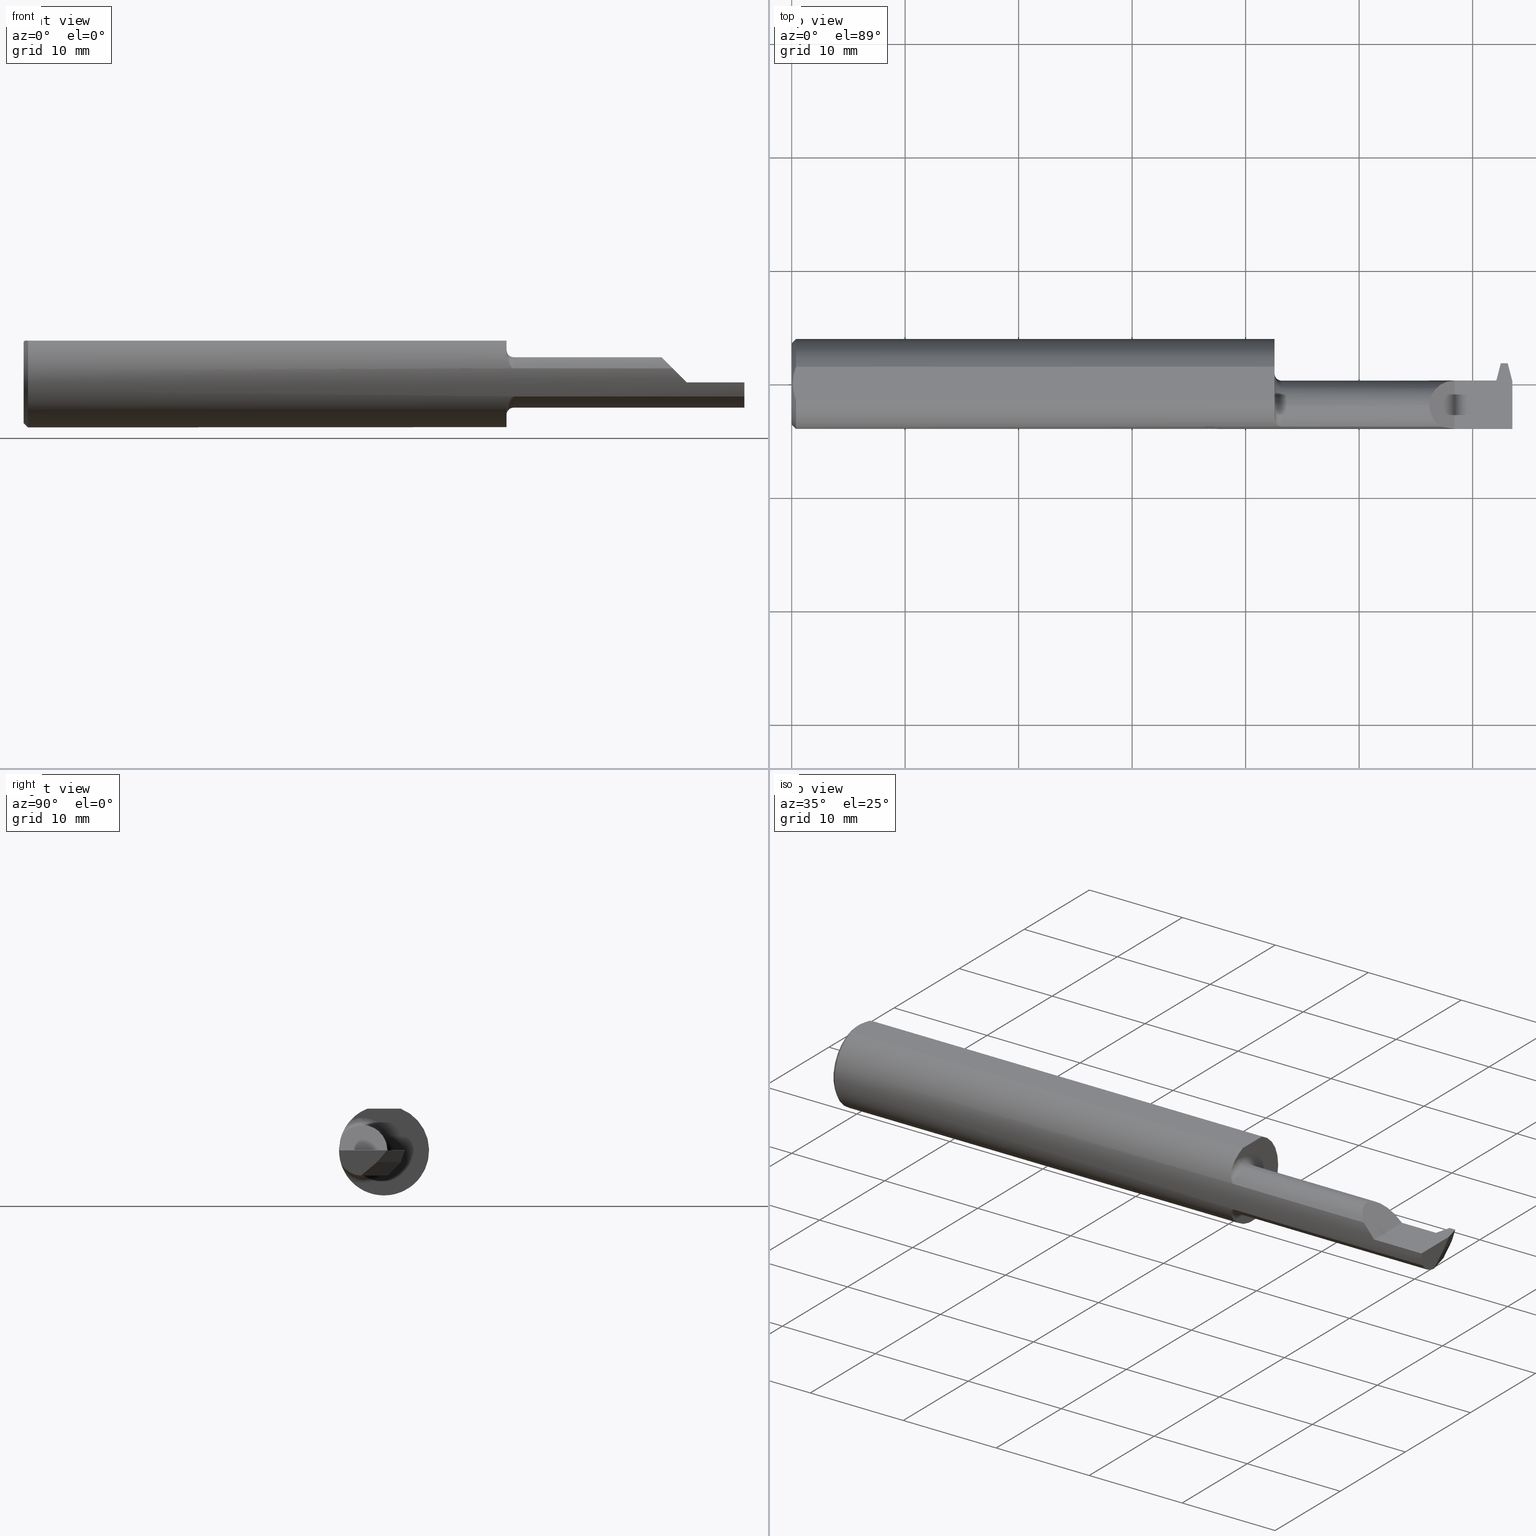
[diagram: canonical four-view strip — front | top / right | iso, engineering-drawing reading convention]
A machine part, canonical four-view strip (front | top / right | iso — engineering-drawing reading convention). The complete STEP part file that produces these views, byte-faithful:
ISO-10303-21;
HEADER;
FILE_DESCRIPTION (( 'STEP AP203' ),
    '1' );
FILE_NAME ('230949-FAT230750-14.STEP',
    '2024-05-01T18:10:50',
    ( '' ),
    ( '' ),
    'SwSTEP 2.0',
    'SolidWorks 2022',
    '' );
FILE_SCHEMA (( 'CONFIG_CONTROL_DESIGN' ));
ENDSEC;

DATA;
#1 = DIRECTION ( 'NONE',  ( 0.000000000000000000, 0.000000000000000000, -1.000000000000000000 ) ) ;
#2 = VECTOR ( 'NONE', #785, 39.37007874015748854 ) ;
#3 = APPLICATION_PROTOCOL_DEFINITION ( 'international standard', 'config_control_design', 1994, #637 ) ;
#4 = PLANE ( 'NONE',  #61 ) ;
#5 = ORIENTED_EDGE ( 'NONE', *, *, #807, .T. ) ;
#6 = AXIS2_PLACEMENT_3D ( 'NONE', #224, #498, #1 ) ;
#7 = CARTESIAN_POINT ( 'NONE',  ( 1.675000000000000044, 0.01190000000000001473, -4.286122238378320280E-17 ) ) ;
#8 = DIMENSIONAL_EXPONENTS ( 1.000000000000000000, 0.000000000000000000, 0.000000000000000000, 0.000000000000000000, 0.000000000000000000, 0.000000000000000000, 0.000000000000000000 ) ;
#9 = DIRECTION ( 'NONE',  ( -1.000000000000000000, -0.000000000000000000, -0.000000000000000000 ) ) ;
#10 = ADVANCED_FACE ( 'NONE', ( #357 ), #853, .F. ) ;
#11 = ORIENTED_EDGE ( 'NONE', *, *, #45, .F. ) ;
#12 = CARTESIAN_POINT ( 'NONE',  ( 2.499598828602855427, -0.07853027803292619846, -0.08746319671885703639 ) ) ;
#13 = DIRECTION ( 'NONE',  ( 2.088695645913289163E-16, -0.9786527043120508695, 0.2055210070593990190 ) ) ;
#14 = CARTESIAN_POINT ( 'NONE',  ( 2.460971373209815294, -0.07560000000000001441, -0.08750000000000002220 ) ) ;
#15 = ORIENTED_EDGE ( 'NONE', *, *, #632, .T. ) ;
#16 = EDGE_CURVE ( 'NONE', #847, #562, #890, .T. ) ;
#17 = DIRECTION ( 'NONE',  ( 0.000000000000000000, 0.000000000000000000, 1.000000000000000000 ) ) ;
#18 = DIRECTION ( 'NONE',  ( 0.000000000000000000, -0.2055210070593990190, -0.9786527043120508695 ) ) ;
#19 = CARTESIAN_POINT ( 'NONE',  ( 2.431928916614725544, 0.01190000000000001647, -0.01216180653188870912 ) ) ;
#20 = ORIENTED_EDGE ( 'NONE', *, *, #519, .F. ) ;
#21 = ADVANCED_FACE ( 'NONE', ( #409 ), #850, .T. ) ;
#22 = DIRECTION ( 'NONE',  ( 1.000000000000000000, 0.000000000000000000, 0.000000000000000000 ) ) ;
#23 = CARTESIAN_POINT ( 'NONE',  ( 1.693177178722074183, -0.1472468593966860251, -0.05183574833930117143 ) ) ;
#24 = EDGE_LOOP ( 'NONE', ( #60, #932, #119, #146, #600, #750 ) ) ;
#25 = TOROIDAL_SURFACE ( 'NONE', #149, 0.1125000000000000305, 0.02500000000000000139 ) ;
#26 = VECTOR ( 'NONE', #491, 39.37007874015748854 ) ;
#27 = CARTESIAN_POINT ( 'NONE',  ( 1.690079856500521727, -0.1460410296156850751, 0.05517908519247215204 ) ) ;
#28 = APPROVAL_ROLE ( '' ) ;
#29 = CARTESIAN_POINT ( 'NONE',  ( 1.675000000000000044, -0.07560000000000001441, 0.000000000000000000 ) ) ;
#30 = ORIENTED_EDGE ( 'NONE', *, *, #840, .F. ) ;
#31 = CARTESIAN_POINT ( 'NONE',  ( 2.480769755525371156, 0.09612417501633442607, -0.002002720452078558550 ) ) ;
#32 = APPROVAL_STATUS ( 'not_yet_approved' ) ;
#33 = LINE ( 'NONE', #828, #518 ) ;
#34 = ORIENTED_EDGE ( 'NONE', *, *, #41, .T. ) ;
#35 = VECTOR ( 'NONE', #300, 39.37007874015748143 ) ;
#36 = CARTESIAN_POINT ( 'NONE',  ( 1.675000000000000044, -0.07560000000000001441, -0.1125000000000000305 ) ) ;
#37 = SECURITY_CLASSIFICATION ( '', '', #189 ) ;
#38 = CALENDAR_DATE ( 2024, 1, 5 ) ;
#39 = FACE_OUTER_BOUND ( 'NONE', #674, .T. ) ;
#40 = ORIENTED_EDGE ( 'NONE', *, *, #284, .T. ) ;
#41 = EDGE_CURVE ( 'NONE', #474, #329, #408, .T. ) ;
#42 = CARTESIAN_POINT ( 'NONE',  ( 2.300000000000000266, 0.2000000000000000111, -4.286122238378320280E-17 ) ) ;
#43 = CARTESIAN_POINT ( 'NONE',  ( 0.000000000000000000, 0.000000000000000000, 0.000000000000000000 ) ) ;
#44 = ORIENTED_EDGE ( 'NONE', *, *, #47, .F. ) ;
#45 = EDGE_CURVE ( 'NONE', #175, #474, #919, .T. ) ;
#46 = APPROVAL ( #386, 'UNSPECIFIED' ) ;
#47 = EDGE_CURVE ( 'NONE', #345, #243, #584, .T. ) ;
#48 = CARTESIAN_POINT ( 'NONE',  ( 0.003999999999996986001, -0.009882491626910055310, 0.1450999999999999790 ) ) ;
#49 = LINE ( 'NONE', #198, #484 ) ;
#50 = ORIENTED_EDGE ( 'NONE', *, *, #68, .T. ) ;
#51 = VECTOR ( 'NONE', #921, 39.37007874015748143 ) ;
#52 = FACE_OUTER_BOUND ( 'NONE', #421, .T. ) ;
#53 = DIRECTION ( 'NONE',  ( 1.000000000000000000, 0.000000000000000000, 0.000000000000000000 ) ) ;
#54 = ORIENTED_EDGE ( 'NONE', *, *, #639, .T. ) ;
#55 = VECTOR ( 'NONE', #108, 39.37007874015748143 ) ;
#56 = LINE ( 'NONE', #213, #130 ) ;
#57 = DIRECTION ( 'NONE',  ( 0.000000000000000000, 0.000000000000000000, -1.000000000000000000 ) ) ;
#58 = ORIENTED_EDGE ( 'NONE', *, *, #550, .F. ) ;
#59 = CARTESIAN_POINT ( 'NONE',  ( 2.500000000000000000, -0.02351705752185811668, -0.03999999999999849509 ) ) ;
#60 = ORIENTED_EDGE ( 'NONE', *, *, #598, .F. ) ;
#61 = AXIS2_PLACEMENT_3D ( 'NONE', #660, #515, #160 ) ;
#62 = AXIS2_PLACEMENT_3D ( 'NONE', #705, #626, #556 ) ;
#63 = LINE ( 'NONE', #565, #73 ) ;
#64 = CC_DESIGN_APPROVAL ( #317, ( #37 ) ) ;
#65 = PLANE ( 'NONE',  #606 ) ;
#66 = AXIS2_PLACEMENT_3D ( 'NONE', #454, #756, #607 ) ;
#67 = ORIENTED_EDGE ( 'NONE', *, *, #765, .T. ) ;
#68 = EDGE_CURVE ( 'NONE', #645, #859, #420, .T. ) ;
#69 =( BOUNDED_CURVE ( )  B_SPLINE_CURVE ( 3, ( #158, #87, #12, #306 ),
 .UNSPECIFIED., .F., .F. ) 
 B_SPLINE_CURVE_WITH_KNOTS ( ( 4, 4 ),
 ( 0.6981317007977303479, 0.7483676794121272291 ),
 .UNSPECIFIED. ) 
 CURVE ( )  GEOMETRIC_REPRESENTATION_ITEM ( )  RATIONAL_B_SPLINE_CURVE ( ( 1.000000000000000000, 0.9997897065944802986, 0.9997897065944802986, 1.000000000000000000 ) ) 
 REPRESENTATION_ITEM ( '' )  );
#70 = DIRECTION ( 'NONE',  ( 1.000000000000000000, 0.000000000000000000, 0.000000000000000000 ) ) ;
#71 = AXIS2_PLACEMENT_3D ( 'NONE', #803, #648, #165 ) ;
#72 = DIRECTION ( 'NONE',  ( 0.2503800040544356675, -0.9681476403781091866, 0.000000000000000000 ) ) ;
#73 = VECTOR ( 'NONE', #766, 39.37007874015748854 ) ;
#74 = DIRECTION ( 'NONE',  ( -1.000000000000000000, -0.000000000000000000, -0.000000000000000000 ) ) ;
#75 = ORIENTED_EDGE ( 'NONE', *, *, #632, .F. ) ;
#76 = EDGE_CURVE ( 'NONE', #798, #859, #845, .T. ) ;
#77 = CARTESIAN_POINT ( 'NONE',  ( 2.251340690561190794, -0.1483222222222220776, 0.04865930943880889675 ) ) ;
#78 = DIRECTION ( 'NONE',  ( 1.000000000000000000, 0.000000000000000000, 0.000000000000000000 ) ) ;
#79 = EDGE_LOOP ( 'NONE', ( #367, #583, #567, #350, #453 ) ) ;
#80 = ADVANCED_FACE ( 'NONE', ( #624 ), #65, .T. ) ;
#81 = CARTESIAN_POINT ( 'NONE',  ( 2.058749999999999858, -0.1483222222222221054, 0.04865930943880881349 ) ) ;
#82 = AXIS2_PLACEMENT_3D ( 'NONE', #917, #53, #344 ) ;
#83 = LINE ( 'NONE', #230, #470 ) ;
#84 = DIRECTION ( 'NONE',  ( 0.000000000000000000, 0.000000000000000000, -1.000000000000000000 ) ) ;
#85 = ORIENTED_EDGE ( 'NONE', *, *, #140, .F. ) ;
#86 =( GEOMETRIC_REPRESENTATION_CONTEXT ( 3 ) GLOBAL_UNCERTAINTY_ASSIGNED_CONTEXT ( ( #691 ) ) GLOBAL_UNIT_ASSIGNED_CONTEXT ( ( #802, #312, #290 ) ) REPRESENTATION_CONTEXT ( 'NONE', 'WORKASPACE' ) );
#87 = CARTESIAN_POINT ( 'NONE',  ( 2.499208634579223709, -0.07706537013472009034, -0.08750000000000002220 ) ) ;
#88 = PLANE ( 'NONE',  #486 ) ;
#89 = CARTESIAN_POINT ( 'NONE',  ( 2.212499999999999911, -0.07560000000000001441, 0.08750000000000002220 ) ) ;
#90 = EDGE_CURVE ( 'NONE', #537, #859, #202, .T. ) ;
#91 = AXIS2_PLACEMENT_3D ( 'NONE', #494, #912, #835 ) ;
#92 = ORIENTED_EDGE ( 'NONE', *, *, #848, .F. ) ;
#93 = CARTESIAN_POINT ( 'NONE',  ( 1.675000000000000044, 0.2119000000000000050, 0.000000000000000000 ) ) ;
#94 = CARTESIAN_POINT ( 'NONE',  ( 2.483431041314417609, 0.07410000000000004083, 0.000000000000000000 ) ) ;
#95 = LINE ( 'NONE', #857, #341 ) ;
#96 = VERTEX_POINT ( 'NONE', #483 ) ;
#97 = DIRECTION ( 'NONE',  ( 0.7071067811865483499, 0.000000000000000000, -0.7071067811865466846 ) ) ;
#98 = DIRECTION ( 'NONE',  ( 0.000000000000000000, 0.000000000000000000, -1.000000000000000000 ) ) ;
#99 = ORIENTED_EDGE ( 'NONE', *, *, #120, .T. ) ;
#100 = AXIS2_PLACEMENT_3D ( 'NONE', #635, #774, #924 ) ;
#101 = DIRECTION ( 'NONE',  ( -0.000000000000000000, 1.000000000000000000, -0.000000000000000000 ) ) ;
#102 = DATE_AND_TIME ( #38, #162 ) ;
#103 = DIRECTION ( 'NONE',  ( 1.000000000000000000, 0.000000000000000000, 0.000000000000000000 ) ) ;
#104 =( BOUNDED_CURVE ( )  B_SPLINE_CURVE ( 3, ( #721, #368, #876, #651 ),
 .UNSPECIFIED., .F., .F. ) 
 B_SPLINE_CURVE_WITH_KNOTS ( ( 4, 4 ),
 ( 0.000000000000000000, 0.9811027303930319743 ),
 .UNSPECIFIED. ) 
 CURVE ( )  GEOMETRIC_REPRESENTATION_ITEM ( )  RATIONAL_B_SPLINE_CURVE ( ( 1.000000000000000000, 0.9213821585145209880, 0.9213821585145209880, 1.000000000000000000 ) ) 
 REPRESENTATION_ITEM ( '' )  );
#105 = VERTEX_POINT ( 'NONE', #770 ) ;
#106 = CARTESIAN_POINT ( 'NONE',  ( 1.677226674330530409, -0.1304125201963227398, 0.08600364038630173291 ) ) ;
#107 = PERSON_AND_ORGANIZATION_ROLE ( 'classification_officer' ) ;
#108 = DIRECTION ( 'NONE',  ( 1.000000000000000000, 2.134256245050228381E-16, -0.000000000000000000 ) ) ;
#109 = ORIENTED_EDGE ( 'NONE', *, *, #814, .F. ) ;
#110 = CARTESIAN_POINT ( 'NONE',  ( 2.450987044514465474, 0.001198827012965008373, -0.04193077830702267306 ) ) ;
#111 = EDGE_CURVE ( 'NONE', #658, #625, #280, .T. ) ;
#112 = SHAPE_DEFINITION_REPRESENTATION ( #928, #663 ) ;
#113 = LINE ( 'NONE', #393, #55 ) ;
#114 = EDGE_LOOP ( 'NONE', ( #137, #834, #50, #854 ) ) ;
#115 = CARTESIAN_POINT ( 'NONE',  ( 2.461097633250371786, -0.1996921588353207655, -0.06225088703809245755 ) ) ;
#116 = APPROVAL_PERSON_ORGANIZATION ( #466, #317, #28 ) ;
#117 = COORDINATED_UNIVERSAL_TIME_OFFSET ( 8, 0, .BEHIND. ) ;
#118 = CARTESIAN_POINT ( 'NONE',  ( 2.300000000000000266, 0.2000000000000000111, -4.286122238378320280E-17 ) ) ;
#119 = ORIENTED_EDGE ( 'NONE', *, *, #683, .T. ) ;
#120 = EDGE_CURVE ( 'NONE', #232, #212, #557, .T. ) ;
#121 = EDGE_CURVE ( 'NONE', #175, #658, #489, .T. ) ;
#122 = VERTEX_POINT ( 'NONE', #926 ) ;
#123 = CARTESIAN_POINT ( 'NONE',  ( 1.699999999999999956, -0.1483222222222221054, -0.04865930943880881349 ) ) ;
#124 = FACE_OUTER_BOUND ( 'NONE', #616, .T. ) ;
#125 = EDGE_LOOP ( 'NONE', ( #786, #187, #418, #292 ) ) ;
#126 = DESIGN_CONTEXT ( 'detailed design', #929, 'design' ) ;
#127 = FACE_OUTER_BOUND ( 'NONE', #114, .T. ) ;
#128 = ORIENTED_EDGE ( 'NONE', *, *, #546, .T. ) ;
#129 = ORIENTED_EDGE ( 'NONE', *, *, #47, .T. ) ;
#130 = VECTOR ( 'NONE', #347, 39.37007874015748143 ) ;
#131 = VECTOR ( 'NONE', #97, 39.37007874015748143 ) ;
#132 = FACE_OUTER_BOUND ( 'NONE', #628, .T. ) ;
#133 = CARTESIAN_POINT ( 'NONE',  ( 2.500000000000000000, -0.07560000000000001441, 0.000000000000000000 ) ) ;
#134 = ORIENTED_EDGE ( 'NONE', *, *, #800, .T. ) ;
#135 = DIRECTION ( 'NONE',  ( -2.349945532544890791E-15, -0.9455185755993167351, 0.3255681544571569774 ) ) ;
#136 = CARTESIAN_POINT ( 'NONE',  ( 2.500000000000000000, 0.2000000000000000111, -4.286122238378320280E-17 ) ) ;
#137 = ORIENTED_EDGE ( 'NONE', *, *, #380, .T. ) ;
#138 = LINE ( 'NONE', #270, #301 ) ;
#139 = DIRECTION ( 'NONE',  ( 0.000000000000000000, 0.000000000000000000, 1.000000000000000000 ) ) ;
#140 = EDGE_CURVE ( 'NONE', #243, #847, #286, .T. ) ;
#141 = ORIENTED_EDGE ( 'NONE', *, *, #374, .F. ) ;
#142 = DIRECTION ( 'NONE',  ( 0.2503800040544416072, 0.9681476403781076323, 0.000000000000000000 ) ) ;
#143 = DIRECTION ( 'NONE',  ( 1.000000000000000000, 0.000000000000000000, 0.000000000000000000 ) ) ;
#144 = DIRECTION ( 'NONE',  ( -1.000000000000000000, -0.000000000000000000, -0.000000000000000000 ) ) ;
#145 = APPROVAL_PERSON_ORGANIZATION ( #602, #670, #526 ) ;
#146 = ORIENTED_EDGE ( 'NONE', *, *, #41, .F. ) ;
#147 = EDGE_CURVE ( 'NONE', #474, #829, #426, .T. ) ;
#148 = DIRECTION ( 'NONE',  ( 0.000000000000000000, 0.000000000000000000, -1.000000000000000000 ) ) ;
#149 = AXIS2_PLACEMENT_3D ( 'NONE', #503, #499, #98 ) ;
#150 = FACE_OUTER_BOUND ( 'NONE', #903, .T. ) ;
#151 = CARTESIAN_POINT ( 'NONE',  ( 0.01499999999999970281, 0.000000000000000000, 0.000000000000000000 ) ) ;
#152 = ADVANCED_FACE ( 'NONE', ( #361 ), #4, .T. ) ;
#153 = ORIENTED_EDGE ( 'NONE', *, *, #641, .T. ) ;
#154 = PRODUCT ( '230949-FAT230750-14', '230949-FAT230750-14', '', ( #597 ) ) ;
#155 = DIRECTION ( 'NONE',  ( -0.9474803064293675359, -0.2450350680735357556, 0.2055210070593990468 ) ) ;
#156 = FACE_OUTER_BOUND ( 'NONE', #772, .T. ) ;
#157 = ORIENTED_EDGE ( 'NONE', *, *, #374, .T. ) ;
#158 = CARTESIAN_POINT ( 'NONE',  ( 2.498829664094795788, -0.07560000000000004217, -0.08750000000000006384 ) ) ;
#159 = CARTESIAN_POINT ( 'NONE',  ( 2.450987044514465474, -0.04764222079116738756, -0.08291328350578192063 ) ) ;
#160 = DIRECTION ( 'NONE',  ( -0.2945363905204724242, 0.000000000000000000, 0.9556402642517589641 ) ) ;
#161 = ORIENTED_EDGE ( 'NONE', *, *, #16, .F. ) ;
#162 = LOCAL_TIME ( 11, 10, 50.00000000000000000, #743 ) ;
#163 = CARTESIAN_POINT ( 'NONE',  ( 1.699999999999999956, -0.07559999999999998666, 0.1125000000000000305 ) ) ;
#164 = PLANE ( 'NONE',  #278 ) ;
#165 = DIRECTION ( 'NONE',  ( 0.000000000000000000, 0.000000000000000000, -1.000000000000000000 ) ) ;
#166 = TOROIDAL_SURFACE ( 'NONE', #71, 0.1125000000000000305, 0.02500000000000000139 ) ;
#167 = VERTEX_POINT ( 'NONE', #644 ) ;
#168 = DIRECTION ( 'NONE',  ( -0.03268736195502882497, 0.9994656254061071721, -0.000000000000000000 ) ) ;
#169 = FACE_OUTER_BOUND ( 'NONE', #841, .T. ) ;
#170 = EDGE_LOOP ( 'NONE', ( #886, #11, #391, #40, #309, #5, #75, #54, #815, #153, #464, #109, #192 ) ) ;
#171 = EDGE_CURVE ( 'NONE', #668, #749, #589, .T. ) ;
#172 = FACE_OUTER_BOUND ( 'NONE', #661, .T. ) ;
#173 = PERSON_AND_ORGANIZATION ( #844, #758 ) ;
#174 = CARTESIAN_POINT ( 'NONE',  ( 2.251340690561190794, -0.1483222222222220776, 0.04865930943880889675 ) ) ;
#175 = VERTEX_POINT ( 'NONE', #241 ) ;
#176 = LOCAL_TIME ( 11, 10, 50.00000000000000000, #327 ) ;
#177 = PRODUCT_RELATED_PRODUCT_CATEGORY ( 'detail', '', ( #154 ) ) ;
#178 = VECTOR ( 'NONE', #642, 39.37007874015748854 ) ;
#179 = CARTESIAN_POINT ( 'NONE',  ( 1.675000000000000044, -0.1194473140465537458, 0.1006887116398776927 ) ) ;
#180 = PERSON_AND_ORGANIZATION ( #844, #758 ) ;
#181 = CYLINDRICAL_SURFACE ( 'NONE', #789, 0.08750000000000002220 ) ;
#182 = ORIENTED_EDGE ( 'NONE', *, *, #868, .T. ) ;
#183 = ORIENTED_EDGE ( 'NONE', *, *, #406, .F. ) ;
#184 = ADVANCED_FACE ( 'NONE', ( #794 ), #422, .T. ) ;
#185 = DIRECTION ( 'NONE',  ( 0.000000000000000000, 0.000000000000000000, -1.000000000000000000 ) ) ;
#186 = CARTESIAN_POINT ( 'NONE',  ( 1.684139466932422780, -0.1419217972574611242, -0.06523403485447477890 ) ) ;
#187 = ORIENTED_EDGE ( 'NONE', *, *, #446, .F. ) ;
#188 = DIRECTION ( 'NONE',  ( 0.000000000000000000, 0.000000000000000000, -1.000000000000000000 ) ) ;
#189 = SECURITY_CLASSIFICATION_LEVEL ( 'unclassified' ) ;
#190 = ADVANCED_FACE ( 'NONE', ( #442 ), #866, .T. ) ;
#191 = LINE ( 'NONE', #677, #910 ) ;
#192 = ORIENTED_EDGE ( 'NONE', *, *, #379, .T. ) ;
#193 = DIRECTION ( 'NONE',  ( -1.000000000000000000, -0.000000000000000000, -0.000000000000000000 ) ) ;
#194 = EDGE_CURVE ( 'NONE', #321, #694, #95, .T. ) ;
#195 = CARTESIAN_POINT ( 'NONE',  ( 1.675465807751463032, -0.1232996061929553383, -0.09592304639536579358 ) ) ;
#196 = ORIENTED_EDGE ( 'NONE', *, *, #288, .T. ) ;
#197 = VERTEX_POINT ( 'NONE', #14 ) ;
#198 = CARTESIAN_POINT ( 'NONE',  ( 1.675000000000000044, 0.1000000000000000056, 0.1450999999999999790 ) ) ;
#199 = CARTESIAN_POINT ( 'NONE',  ( 2.212499999999999911, -0.02434368670764566409, 0.08750000000000006384 ) ) ;
#200 = ORIENTED_EDGE ( 'NONE', *, *, #121, .T. ) ;
#201 = DIRECTION ( 'NONE',  ( 0.000000000000000000, -0.7660444431189792347, -0.6427876096865379196 ) ) ;
#202 = LINE ( 'NONE', #566, #51 ) ;
#203 = EDGE_LOOP ( 'NONE', ( #34, #207, #633, #734, #720 ) ) ;
#204 = VECTOR ( 'NONE', #168, 39.37007874015748854 ) ;
#205 = CARTESIAN_POINT ( 'NONE',  ( 1.675000000000000044, -0.07560000000000001441, 0.000000000000000000 ) ) ;
#206 = CARTESIAN_POINT ( 'NONE',  ( 2.500000000000000000, 0.01062689546841387271, -0.08750000000000006384 ) ) ;
#207 = ORIENTED_EDGE ( 'NONE', *, *, #447, .F. ) ;
#208 = EDGE_CURVE ( 'NONE', #555, #547, #293, .T. ) ;
#209 = CARTESIAN_POINT ( 'NONE',  ( 0.01157928343552837129, 0.04828364633877424428, 0.1451000000000000068 ) ) ;
#210 = CARTESIAN_POINT ( 'NONE',  ( 2.500000000000000000, 0.005889444213692054259, -0.004939719507637557391 ) ) ;
#211 = B_SPLINE_CURVE_WITH_KNOTS ( 'NONE', 3,
 ( #261, #536, #195, #328, #473, #603, #186, #888, #762, #23, #319, #599, #246, #527 ),
 .UNSPECIFIED., .F., .F.,
 ( 4, 2, 2, 2, 2, 2, 4 ),
 ( 0.000000000000000000, 0.0004670506114816671086, 0.0009341012229633342172, 0.001401151834445001380, 0.001634677140185839461, 0.001751439793056258501, 0.001868202445926677542 ),
 .UNSPECIFIED. ) ;
#212 = VERTEX_POINT ( 'NONE', #297 ) ;
#213 = CARTESIAN_POINT ( 'NONE',  ( 0.01499999999999970281, 1.911673653469018068E-17, 0.1560999999999999888 ) ) ;
#214 = EDGE_CURVE ( 'NONE', #724, #167, #346, .T. ) ;
#215 = CC_DESIGN_PERSON_AND_ORGANIZATION_ASSIGNMENT ( #180, #107, ( #37 ) ) ;
#216 = FACE_OUTER_BOUND ( 'NONE', #899, .T. ) ;
#217 = EDGE_CURVE ( 'NONE', #321, #694, #517, .T. ) ;
#218 = ORIENTED_EDGE ( 'NONE', *, *, #617, .T. ) ;
#219 = ORIENTED_EDGE ( 'NONE', *, *, #354, .F. ) ;
#220 = DIRECTION ( 'NONE',  ( -1.000000000000000000, -0.000000000000000000, -0.000000000000000000 ) ) ;
#221 = EDGE_CURVE ( 'NONE', #122, #625, #806, .T. ) ;
#222 = DIRECTION ( 'NONE',  ( -0.9786527043120508695, 0.000000000000000000, 0.2055210070593990190 ) ) ;
#223 = VERTEX_POINT ( 'NONE', #797 ) ;
#224 = CARTESIAN_POINT ( 'NONE',  ( 0.01499999999999970281, 0.000000000000000000, 0.000000000000000000 ) ) ;
#225 = AXIS2_PLACEMENT_3D ( 'NONE', #587, #570, #871 ) ;
#226 = LENGTH_MEASURE_WITH_UNIT ( LENGTH_MEASURE( 0.02539999999999999897 ), #861 );
#227 = PLANE ( 'NONE',  #242 ) ;
#228 = VERTEX_POINT ( 'NONE', #451 ) ;
#229 = LINE ( 'NONE', #507, #610 ) ;
#230 = CARTESIAN_POINT ( 'NONE',  ( 1.675000000000000044, -0.04764222079116749164, -0.08291328350578194839 ) ) ;
#231 = DIRECTION ( 'NONE',  ( 0.000000000000000000, 0.000000000000000000, -1.000000000000000000 ) ) ;
#232 = VERTEX_POINT ( 'NONE', #593 ) ;
#233 = DIRECTION ( 'NONE',  ( -1.000000000000000000, -0.000000000000000000, -0.000000000000000000 ) ) ;
#234 = VECTOR ( 'NONE', #492, 39.37007874015748143 ) ;
#235 = CARTESIAN_POINT ( 'NONE',  ( 2.450987044514465474, 0.003499838996864046512, -0.03999999999999849509 ) ) ;
#236 = ORIENTED_EDGE ( 'NONE', *, *, #217, .F. ) ;
#237 = VECTOR ( 'NONE', #296, 39.37007874015748143 ) ;
#238 = DIRECTION ( 'NONE',  ( 0.000000000000000000, 0.000000000000000000, -1.000000000000000000 ) ) ;
#239 = DATE_AND_TIME ( #398, #875 ) ;
#240 = ADVANCED_FACE ( 'NONE', ( #880 ), #227, .F. ) ;
#241 = CARTESIAN_POINT ( 'NONE',  ( 2.500000000000000000, -0.1560999999999999888, -4.286122238378320280E-17 ) ) ;
#242 = AXIS2_PLACEMENT_3D ( 'NONE', #582, #222, #304 ) ;
#243 = VERTEX_POINT ( 'NONE', #89 ) ;
#244 = CARTESIAN_POINT ( 'NONE',  ( 1.678505049239872537, -0.1336168144122109880, 0.08092660117083304294 ) ) ;
#245 = PERSON_AND_ORGANIZATION ( #844, #758 ) ;
#246 = CARTESIAN_POINT ( 'NONE',  ( 1.698423634396825088, -0.1483222222223043729, -0.04865930943875496073 ) ) ;
#247 = ADVANCED_FACE ( 'NONE', ( #169 ), #25, .F. ) ;
#248 = LINE ( 'NONE', #465, #204 ) ;
#249 = DIRECTION ( 'NONE',  ( 0.000000000000000000, 0.000000000000000000, -1.000000000000000000 ) ) ;
#250 = AXIS2_PLACEMENT_3D ( 'NONE', #414, #352, #914 ) ;
#251 = ADVANCED_FACE ( 'NONE', ( #156 ), #308, .F. ) ;
#252 = AXIS2_PLACEMENT_3D ( 'NONE', #115, #613, #823 ) ;
#253 = DIRECTION ( 'NONE',  ( 0.03504448777032644069, 0.7066724431718361954, 0.7066724431718440780 ) ) ;
#254 = APPROVAL_ROLE ( '' ) ;
#255 = PLANE ( 'NONE',  #334 ) ;
#256 = ORIENTED_EDGE ( 'NONE', *, *, #840, .T. ) ;
#257 = ADVANCED_FACE ( 'NONE', ( #788 ), #166, .F. ) ;
#258 = CARTESIAN_POINT ( 'NONE',  ( 1.696903641765110882, -0.1481407958389036883, 0.04921621718884815200 ) ) ;
#259 = DIRECTION ( 'NONE',  ( -0.1571540165094708896, 0.2029672248372562937, 0.9664920696709329295 ) ) ;
#260 = CARTESIAN_POINT ( 'NONE',  ( 1.675000000000000044, -0.07560000000000001441, 0.000000000000000000 ) ) ;
#261 = CARTESIAN_POINT ( 'NONE',  ( 1.675000000000000044, -0.1152534391534390523, -0.1052798877435976166 ) ) ;
#262 = ORIENTED_EDGE ( 'NONE', *, *, #406, .T. ) ;
#263 = ORIENTED_EDGE ( 'NONE', *, *, #662, .T. ) ;
#264 = AXIS2_PLACEMENT_3D ( 'NONE', #529, #891, #397 ) ;
#265 = DIRECTION ( 'NONE',  ( 0.000000000000000000, -1.000000000000000000, 0.000000000000000000 ) ) ;
#266 = EDGE_CURVE ( 'NONE', #223, #96, #745, .T. ) ;
#267 = DIRECTION ( 'NONE',  ( 1.000000000000000000, -0.000000000000000000, -0.000000000000000000 ) ) ;
#268 = ORIENTED_EDGE ( 'NONE', *, *, #217, .T. ) ;
#269 = VECTOR ( 'NONE', #259, 39.37007874015748854 ) ;
#270 = CARTESIAN_POINT ( 'NONE',  ( 2.432628570000000767, 0.05812689546841356275, -0.03999999999999986205 ) ) ;
#271 = DIRECTION ( 'NONE',  ( 1.000000000000000000, 0.000000000000000000, 0.000000000000000000 ) ) ;
#272 = EDGE_LOOP ( 'NONE', ( #620, #909, #704, #867, #276, #92, #200, #338 ) ) ;
#273 = CYLINDRICAL_SURFACE ( 'NONE', #791, 0.08750000000000002220 ) ;
#274 = DIRECTION ( 'NONE',  ( 0.000000000000000000, -0.6426264403010678583, -0.7661796514042761297 ) ) ;
#275 = ADVANCED_FACE ( 'NONE', ( #687 ), #744, .F. ) ;
#276 = ORIENTED_EDGE ( 'NONE', *, *, #783, .F. ) ;
#277 = AXIS2_PLACEMENT_3D ( 'NONE', #706, #703, #908 ) ;
#278 = AXIS2_PLACEMENT_3D ( 'NONE', #303, #732, #143 ) ;
#279 = FACE_OUTER_BOUND ( 'NONE', #682, .T. ) ;
#280 = LINE ( 'NONE', #210, #872 ) ;
#281 = ORIENTED_EDGE ( 'NONE', *, *, #809, .T. ) ;
#282 = MANIFOLD_SOLID_BREP ( 'Neck cleanup', #468 ) ;
#283 = EDGE_CURVE ( 'NONE', #287, #497, #673, .T. ) ;
#284 = EDGE_CURVE ( 'NONE', #882, #552, #524, .T. ) ;
#285 = DIRECTION ( 'NONE',  ( 0.9277270166603222012, 0.2399265199903892753, -0.2859332921571740016 ) ) ;
#286 = LINE ( 'NONE', #496, #723 ) ;
#287 = VERTEX_POINT ( 'NONE', #325 ) ;
#288 = EDGE_CURVE ( 'NONE', #694, #798, #113, .T. ) ;
#289 = DIRECTION ( 'NONE',  ( 0.000000000000000000, 1.000000000000000000, -1.224646799147353207E-16 ) ) ;
#290 =( NAMED_UNIT ( * ) SI_UNIT ( $, .STERADIAN. ) SOLID_ANGLE_UNIT ( ) );
#291 = DIRECTION ( 'NONE',  ( 0.000000000000000000, 0.000000000000000000, -1.000000000000000000 ) ) ;
#292 = ORIENTED_EDGE ( 'NONE', *, *, #120, .F. ) ;
#293 = CIRCLE ( 'NONE', #816, 0.1560999999999999888 ) ;
#294 = CARTESIAN_POINT ( 'NONE',  ( 2.500000000000000000, 0.01003259048162119527, 0.000000000000000000 ) ) ;
#295 = VECTOR ( 'NONE', #101, 39.37007874015748143 ) ;
#296 = DIRECTION ( 'NONE',  ( -0.2503800040544414407, 0.9681476403781077433, 0.000000000000000000 ) ) ;
#297 = CARTESIAN_POINT ( 'NONE',  ( 2.476529872682246225, 0.01062689546841387271, -0.08750000000000006384 ) ) ;
#298 = AXIS2_PLACEMENT_3D ( 'NONE', #163, #289, #930 ) ;
#299 = ORIENTED_EDGE ( 'NONE', *, *, #702, .F. ) ;
#300 = DIRECTION ( 'NONE',  ( 1.000000000000000000, 0.000000000000000000, 0.000000000000000000 ) ) ;
#301 = VECTOR ( 'NONE', #403, 39.37007874015748143 ) ;
#302 = CIRCLE ( 'NONE', #822, 0.08750000000000002220 ) ;
#303 = CARTESIAN_POINT ( 'NONE',  ( 2.500000000000000000, 0.1292708783910745396, -0.08750000000000006384 ) ) ;
#304 = DIRECTION ( 'NONE',  ( 0.2055210070593990190, 0.000000000000000000, 0.9786527043120508695 ) ) ;
#305 = EDGE_LOOP ( 'NONE', ( #15, #479, #256, #400, #558, #371 ) ) ;
#306 = CARTESIAN_POINT ( 'NONE',  ( 2.500000000000000000, -0.07999379951320635673, -0.08738961337503303728 ) ) ;
#307 = PLANE ( 'NONE',  #799 ) ;
#308 = PLANE ( 'NONE',  #225 ) ;
#309 = ORIENTED_EDGE ( 'NONE', *, *, #569, .F. ) ;
#310 = ADVANCED_FACE ( 'NONE', ( #39 ), #181, .T. ) ;
#311 = LINE ( 'NONE', #81, #487 ) ;
#312 =( NAMED_UNIT ( * ) PLANE_ANGLE_UNIT ( ) SI_UNIT ( $, .RADIAN. ) );
#313 = DIRECTION ( 'NONE',  ( 0.2503800040544414407, -0.9681476403781077433, 0.000000000000000000 ) ) ;
#314 = ORIENTED_EDGE ( 'NONE', *, *, #868, .F. ) ;
#315 = VECTOR ( 'NONE', #679, 39.37007874015748143 ) ;
#316 = CARTESIAN_POINT ( 'NONE',  ( 1.699999999999999956, -0.07560000000000001441, 0.000000000000000000 ) ) ;
#317 = APPROVAL ( #672, 'UNSPECIFIED' ) ;
#318 = EDGE_CURVE ( 'NONE', #497, #321, #191, .T. ) ;
#319 = CARTESIAN_POINT ( 'NONE',  ( 1.694290005174225122, -0.1475973241759682975, -0.05082285830523344122 ) ) ;
#320 = VECTOR ( 'NONE', #201, 39.37007874015748143 ) ;
#321 = VERTEX_POINT ( 'NONE', #531 ) ;
#322 = ADVANCED_FACE ( 'NONE', ( #545 ), #825, .F. ) ;
#323 = LINE ( 'NONE', #31, #396 ) ;
#324 = APPROVAL_DATE_TIME ( #535, #317 ) ;
#325 = CARTESIAN_POINT ( 'NONE',  ( 2.450987044514465474, 0.003499838996864124141, -0.03999999999999843264 ) ) ;
#326 = CARTESIAN_POINT ( 'NONE',  ( 1.675000000000000044, -0.1152534391534390523, 0.1052798877435976166 ) ) ;
#327 = COORDINATED_UNIVERSAL_TIME_OFFSET ( 8, 0, .BEHIND. ) ;
#328 = CARTESIAN_POINT ( 'NONE',  ( 1.677213181498967698, -0.1303732011993284645, -0.08606307062930523832 ) ) ;
#329 = VERTEX_POINT ( 'NONE', #831 ) ;
#330 = AXIS2_PLACEMENT_3D ( 'NONE', #712, #233, #17 ) ;
#331 = LINE ( 'NONE', #742, #131 ) ;
#332 = PERSON_AND_ORGANIZATION ( #844, #758 ) ;
#333 = CARTESIAN_POINT ( 'NONE',  ( 2.444482944938646707, 0.01190000000000008412, -3.421370835401266526E-19 ) ) ;
#334 = AXIS2_PLACEMENT_3D ( 'NONE', #118, #748, #467 ) ;
#335 = CARTESIAN_POINT ( 'NONE',  ( 2.450987044514465474, -0.04764222079116738756, -0.08291328350578192063 ) ) ;
#336 = PERSON_AND_ORGANIZATION_ROLE ( 'design_supplier' ) ;
#337 = DIRECTION ( 'NONE',  ( -1.000000000000000000, -0.000000000000000000, -0.000000000000000000 ) ) ;
#338 = ORIENTED_EDGE ( 'NONE', *, *, #384, .F. ) ;
#339 = CARTESIAN_POINT ( 'NONE',  ( 0.01160171645209438947, -0.04834448319362431162, 0.1450999999999999790 ) ) ;
#340 = CARTESIAN_POINT ( 'NONE',  ( 2.455776737842579660, -0.009880466550820794433, -0.06794561911473875893 ) ) ;
#341 = VECTOR ( 'NONE', #445, 39.37007874015748854 ) ;
#342 = CC_DESIGN_DATE_AND_TIME_ASSIGNMENT ( #463, #812, ( #433 ) ) ;
#343 = CARTESIAN_POINT ( 'NONE',  ( 2.483431041314417609, 0.07410000000000004083, 0.000000000000000000 ) ) ;
#344 = DIRECTION ( 'NONE',  ( 0.000000000000000000, 0.000000000000000000, -1.000000000000000000 ) ) ;
#345 = VERTEX_POINT ( 'NONE', #460 ) ;
#346 = CIRCLE ( 'NONE', #563, 0.1125000000000000305 ) ;
#347 = DIRECTION ( 'NONE',  ( 0.7071067811865483499, 8.659560562354922997E-17, 0.7071067811865466846 ) ) ;
#348 = EDGE_CURVE ( 'NONE', #378, #197, #667, .T. ) ;
#349 = CARTESIAN_POINT ( 'NONE',  ( 2.483436936800723416, 0.008786211020116767995, -0.1832957524867132315 ) ) ;
#350 = ORIENTED_EDGE ( 'NONE', *, *, #837, .T. ) ;
#351 = CARTESIAN_POINT ( 'NONE',  ( 2.450206291691873872, 0.004508195240025947466, -0.03519839563653279907 ) ) ;
#352 = DIRECTION ( 'NONE',  ( 0.9474803064293677579, -0.2450350680735350062, 0.2055210070593990468 ) ) ;
#353 = ORIENTED_EDGE ( 'NONE', *, *, #598, .T. ) ;
#354 = EDGE_CURVE ( 'NONE', #829, #457, #302, .T. ) ;
#355 = VECTOR ( 'NONE', #574, 39.37007874015748143 ) ;
#356 = CARTESIAN_POINT ( 'NONE',  ( 0.005017455651907636906, 0.01961184984831247299, 0.1450999999999999790 ) ) ;
#357 = FACE_OUTER_BOUND ( 'NONE', #898, .T. ) ;
#358 = ADVANCED_FACE ( 'NONE', ( #541 ), #255, .F. ) ;
#359 = ORIENTED_EDGE ( 'NONE', *, *, #883, .F. ) ;
#360 = DIRECTION ( 'NONE',  ( -1.000000000000000000, -0.000000000000000000, -0.000000000000000000 ) ) ;
#361 = FACE_OUTER_BOUND ( 'NONE', #923, .T. ) ;
#362 = EDGE_LOOP ( 'NONE', ( #894, #314, #157, #764 ) ) ;
#363 = CARTESIAN_POINT ( 'NONE',  ( 2.498269301952187327, 0.1297184673394493337, -0.08750000000000006384 ) ) ;
#364 = LINE ( 'NONE', #514, #548 ) ;
#365 = CARTESIAN_POINT ( 'NONE',  ( 2.500000000000000000, 0.000000000000000000, 0.000000000000000000 ) ) ;
#366 = B_SPLINE_CURVE_WITH_KNOTS ( 'NONE', 3,
 ( #618, #818, #258, #539, #900, #27, #669, #805, #884, #244, #106, #827, #179, #735 ),
 .UNSPECIFIED., .F., .F.,
 ( 4, 2, 2, 2, 2, 2, 4 ),
 ( 0.000000000000000000, 0.0001185999505355502887, 0.0002371999010711005774, 0.0004743998021421869517, 0.0009487996042843587245, 0.001423199406426531310, 0.001897599208568703571 ),
 .UNSPECIFIED. ) ;
#367 = ORIENTED_EDGE ( 'NONE', *, *, #480, .F. ) ;
#368 = CARTESIAN_POINT ( 'NONE',  ( 2.212499999999999911, -0.1054264415332321903, 0.08750000000000003608 ) ) ;
#369 = VECTOR ( 'NONE', #796, 39.37007874015748143 ) ;
#370 = DIRECTION ( 'NONE',  ( 0.000000000000000000, 0.000000000000000000, 1.000000000000000000 ) ) ;
#371 = ORIENTED_EDGE ( 'NONE', *, *, #480, .T. ) ;
#372 = CARTESIAN_POINT ( 'NONE',  ( 2.500000000000000000, -0.02351705752185811668, -0.03999999999999849509 ) ) ;
#373 = DIRECTION ( 'NONE',  ( 0.000000000000000000, 0.000000000000000000, -1.000000000000000000 ) ) ;
#374 = EDGE_CURVE ( 'NONE', #716, #668, #33, .T. ) ;
#375 = ORIENTED_EDGE ( 'NONE', *, *, #208, .F. ) ;
#376 = CYLINDRICAL_SURFACE ( 'NONE', #330, 0.08750000000000002220 ) ;
#377 = CARTESIAN_POINT ( 'NONE',  ( 2.427091140178673001, 0.004508195240025976089, -0.03519839563653264641 ) ) ;
#378 = VERTEX_POINT ( 'NONE', #902 ) ;
#379 = EDGE_CURVE ( 'NONE', #826, #829, #211, .T. ) ;
#380 = EDGE_CURVE ( 'NONE', #537, #122, #813, .T. ) ;
#381 = CARTESIAN_POINT ( 'NONE',  ( 2.463053395752905494, 0.09969033124243457944, 0.001563435774021637321 ) ) ;
#382 = CARTESIAN_POINT ( 'NONE',  ( 0.000000000000000000, 0.1000000000000000056, 0.1450999999999999790 ) ) ;
#383 = ORIENTED_EDGE ( 'NONE', *, *, #800, .F. ) ;
#384 = EDGE_CURVE ( 'NONE', #537, #658, #849, .T. ) ;
#385 = PLANE ( 'NONE',  #423 ) ;
#386 = APPROVAL_STATUS ( 'not_yet_approved' ) ;
#387 = DIRECTION ( 'NONE',  ( 0.000000000000000000, 0.000000000000000000, 1.000000000000000000 ) ) ;
#388 = CARTESIAN_POINT ( 'NONE',  ( 2.440987044514465687, -0.04764222079116747083, -0.08291328350578199002 ) ) ;
#389 = CALENDAR_DATE ( 2024, 1, 5 ) ;
#390 = DIRECTION ( 'NONE',  ( 0.000000000000000000, 0.000000000000000000, -1.000000000000000000 ) ) ;
#391 = ORIENTED_EDGE ( 'NONE', *, *, #848, .T. ) ;
#392 = FACE_OUTER_BOUND ( 'NONE', #125, .T. ) ;
#393 = CARTESIAN_POINT ( 'NONE',  ( 2.444482944938646707, 0.01190000000000008412, 0.000000000000000000 ) ) ;
#394 = VERTEX_POINT ( 'NONE', #629 ) ;
#395 = LOCAL_TIME ( 11, 10, 50.00000000000000000, #117 ) ;
#396 = VECTOR ( 'NONE', #253, 39.37007874015748854 ) ;
#397 = DIRECTION ( 'NONE',  ( 0.000000000000000000, -0.7071067811865435759, -0.7071067811865514585 ) ) ;
#398 = CALENDAR_DATE ( 2024, 1, 5 ) ;
#399 = CARTESIAN_POINT ( 'NONE',  ( 2.300000000000000266, -0.1560999999999999888, -4.286122238378320280E-17 ) ) ;
#400 = ORIENTED_EDGE ( 'NONE', *, *, #452, .T. ) ;
#401 = ORIENTED_EDGE ( 'NONE', *, *, #901, .F. ) ;
#402 = CARTESIAN_POINT ( 'NONE',  ( 0.008847869984959717479, -0.03896939155709343294, 0.1450999999999999512 ) ) ;
#403 = DIRECTION ( 'NONE',  ( -1.000000000000000000, 3.790537843680312869E-15, 3.790537843680355467E-15 ) ) ;
#404 = ORIENTED_EDGE ( 'NONE', *, *, #283, .T. ) ;
#405 = ORIENTED_EDGE ( 'NONE', *, *, #612, .F. ) ;
#406 = EDGE_CURVE ( 'NONE', #497, #798, #63, .T. ) ;
#407 = CARTESIAN_POINT ( 'NONE',  ( 2.500000000000000000, -0.02351705752185811668, -0.03999999999999849509 ) ) ;
#408 = CIRCLE ( 'NONE', #678, 0.08750000000000003608 ) ;
#409 = FACE_OUTER_BOUND ( 'NONE', #760, .T. ) ;
#410 = ORIENTED_EDGE ( 'NONE', *, *, #702, .T. ) ;
#411 = CIRCLE ( 'NONE', #6, 0.1560999999999999888 ) ;
#412 = EDGE_CURVE ( 'NONE', #228, #851, #505, .T. ) ;
#413 = DIRECTION ( 'NONE',  ( 0.000000000000000000, -0.3255681544571569219, -0.9455185755993166241 ) ) ;
#414 = CARTESIAN_POINT ( 'NONE',  ( 2.460568958685582786, 0.07410000000000004083, 0.000000000000000000 ) ) ;
#415 = ORIENTED_EDGE ( 'NONE', *, *, #662, .F. ) ;
#416 = CARTESIAN_POINT ( 'NONE',  ( 2.484000000000000430, 0.07190000000000000557, 0.000000000000000000 ) ) ;
#417 = ORIENTED_EDGE ( 'NONE', *, *, #519, .T. ) ;
#418 = ORIENTED_EDGE ( 'NONE', *, *, #709, .F. ) ;
#419 = LINE ( 'NONE', #407, #320 ) ;
#420 = LINE ( 'NONE', #349, #2 ) ;
#421 = EDGE_LOOP ( 'NONE', ( #161, #218, #493, #485 ) ) ;
#422 = CONICAL_SURFACE ( 'NONE', #738, 0.1560999999999999888, 0.7853981633974471688 ) ;
#423 = AXIS2_PLACEMENT_3D ( 'NONE', #685, #22, #596 ) ;
#424 = PLANE ( 'NONE',  #725 ) ;
#425 = DIRECTION ( 'NONE',  ( 1.000000000000000000, 0.000000000000000000, 0.000000000000000000 ) ) ;
#426 = LINE ( 'NONE', #714, #692 ) ;
#427 = ORIENTED_EDGE ( 'NONE', *, *, #318, .T. ) ;
#428 = ADVANCED_FACE ( 'NONE', ( #124 ), #895, .T. ) ;
#429 = CARTESIAN_POINT ( 'NONE',  ( 0.01499999999999970281, 0.000000000000000000, -0.1560999999999999888 ) ) ;
#430 = CARTESIAN_POINT ( 'NONE',  ( 0.000000000000000000, 0.000000000000000000, 0.000000000000000000 ) ) ;
#431 = CARTESIAN_POINT ( 'NONE',  ( 0.01499999999999970281, 0.000000000000000000, 0.000000000000000000 ) ) ;
#432 = EDGE_LOOP ( 'NONE', ( #134, #401, #478, #141 ) ) ;
#433 = PRODUCT_DEFINITION ( 'UNKNOWN', '', #695, #126 ) ;
#434 = DIRECTION ( 'NONE',  ( 0.000000000000000000, -0.7660444431189792347, -0.6427876096865379196 ) ) ;
#435 = DIRECTION ( 'NONE',  ( -3.429683675536004882E-17, 0.6427876096865379196, -0.7660444431189792347 ) ) ;
#436 = CARTESIAN_POINT ( 'NONE',  ( 0.000000000000000000, 0.000000000000000000, 0.000000000000000000 ) ) ;
#437 = ORIENTED_EDGE ( 'NONE', *, *, #140, .T. ) ;
#438 = ADVANCED_FACE ( 'NONE', ( #778 ), #273, .T. ) ;
#439 = DIRECTION ( 'NONE',  ( 0.000000000000000000, 0.000000000000000000, -1.000000000000000000 ) ) ;
#440 = CC_DESIGN_APPROVAL ( #46, ( #695 ) ) ;
#441 = CARTESIAN_POINT ( 'NONE',  ( 0.003999999999999595893, 1.377970445471898428E-17, 0.1450999999999999790 ) ) ;
#442 = FACE_OUTER_BOUND ( 'NONE', #170, .T. ) ;
#443 = ORIENTED_EDGE ( 'NONE', *, *, #569, .T. ) ;
#444 = CARTESIAN_POINT ( 'NONE',  ( 1.675000000000000044, 0.000000000000000000, 0.000000000000000000 ) ) ;
#445 = DIRECTION ( 'NONE',  ( 0.2013133534504512878, 0.2013133534504512878, 0.9586166425871539554 ) ) ;
#446 = EDGE_CURVE ( 'NONE', #122, #645, #138, .T. ) ;
#447 = EDGE_CURVE ( 'NONE', #625, #329, #419, .T. ) ;
#448 = ORIENTED_EDGE ( 'NONE', *, *, #348, .T. ) ;
#449 = CARTESIAN_POINT ( 'NONE',  ( 1.675000000000000044, -0.1152534391534390523, -0.1052798877435976166 ) ) ;
#450 = CALENDAR_DATE ( 2024, 1, 5 ) ;
#451 = CARTESIAN_POINT ( 'NONE',  ( 0.01499999999999970281, 0.05756040305626777126, 0.1450999999999999790 ) ) ;
#452 = EDGE_CURVE ( 'NONE', #781, #826, #913, .T. ) ;
#453 = ORIENTED_EDGE ( 'NONE', *, *, #639, .F. ) ;
#454 = CARTESIAN_POINT ( 'NONE',  ( 0.000000000000000000, 0.000000000000000000, 0.000000000000000000 ) ) ;
#455 = COORDINATED_UNIVERSAL_TIME_OFFSET ( 8, 0, .BEHIND. ) ;
#456 = CARTESIAN_POINT ( 'NONE',  ( 2.459428715010504085, 0.005731502428090950139, -0.1921672704078045968 ) ) ;
#457 = VERTEX_POINT ( 'NONE', #838 ) ;
#458 = LINE ( 'NONE', #381, #771 ) ;
#459 = DATE_TIME_ROLE ( 'classification_date' ) ;
#460 = CARTESIAN_POINT ( 'NONE',  ( 2.300000000000000266, 0.01190000000000008412, -4.286122238378320280E-17 ) ) ;
#461 = ORIENTED_EDGE ( 'NONE', *, *, #476, .F. ) ;
#462 = FACE_OUTER_BOUND ( 'NONE', #481, .T. ) ;
#463 = DATE_AND_TIME ( #450, #176 ) ;
#464 = ORIENTED_EDGE ( 'NONE', *, *, #911, .T. ) ;
#465 = CARTESIAN_POINT ( 'NONE',  ( 2.454319963862344967, 0.1277769201824131839, -0.08750000000000006384 ) ) ;
#466 = PERSON_AND_ORGANIZATION ( #844, #758 ) ;
#467 = DIRECTION ( 'NONE',  ( -1.000000000000000000, 0.000000000000000000, 0.000000000000000000 ) ) ;
#468 = CLOSED_SHELL ( 'NONE', ( #477, #247, #184, #538, #310, #858, #152, #878, #80, #438, #877, #907, #10, #779, #190, #275, #358, #251, #322, #428, #544, #257, #511, #240, #506, #21, #710, #773 ) ) ;
#469 = ORIENTED_EDGE ( 'NONE', *, *, #676, .T. ) ;
#470 = VECTOR ( 'NONE', #425, 39.37007874015748143 ) ;
#471 = ORIENTED_EDGE ( 'NONE', *, *, #783, .T. ) ;
#472 = CARTESIAN_POINT ( 'NONE',  ( 1.699999999999999956, -0.07560000000000001441, 0.08750000000000002220 ) ) ;
#473 = CARTESIAN_POINT ( 'NONE',  ( 1.678500940198883518, -0.1336093403149762049, -0.08093965625166069100 ) ) ;
#474 = VERTEX_POINT ( 'NONE', #906 ) ;
#475 = VECTOR ( 'NONE', #313, 39.37007874015748143 ) ;
#476 = EDGE_CURVE ( 'NONE', #197, #497, #708, .T. ) ;
#477 = ADVANCED_FACE ( 'NONE', ( #52 ), #573, .F. ) ;
#478 = ORIENTED_EDGE ( 'NONE', *, *, #676, .F. ) ;
#479 = ORIENTED_EDGE ( 'NONE', *, *, #214, .T. ) ;
#480 = EDGE_CURVE ( 'NONE', #730, #394, #49, .T. ) ;
#481 = EDGE_LOOP ( 'NONE', ( #863, #504, #263, #638 ) ) ;
#482 = CARTESIAN_POINT ( 'NONE',  ( 2.459801557096684910, -0.03983109963022438832, -0.08750000000000002220 ) ) ;
#483 = CARTESIAN_POINT ( 'NONE',  ( 0.000000000000000000, 0.000000000000000000, -0.1411000000000003085 ) ) ;
#484 = VECTOR ( 'NONE', #265, 39.37007874015748143 ) ;
#485 = ORIENTED_EDGE ( 'NONE', *, *, #807, .F. ) ;
#486 = AXIS2_PLACEMENT_3D ( 'NONE', #94, #155, #72 ) ;
#487 = VECTOR ( 'NONE', #585, 39.37007874015748143 ) ;
#488 = DIRECTION ( 'NONE',  ( -1.000000000000000000, -0.000000000000000000, -0.000000000000000000 ) ) ;
#489 = LINE ( 'NONE', #136, #755 ) ;
#490 = EDGE_LOOP ( 'NONE', ( #873, #417, #572, #795, #810 ) ) ;
#491 = DIRECTION ( 'NONE',  ( -0.1200238624775779306, -0.3232146245633317205, -0.9386834284807354933 ) ) ;
#492 = DIRECTION ( 'NONE',  ( 1.000000000000000000, 0.000000000000000000, 0.000000000000000000 ) ) ;
#493 = ORIENTED_EDGE ( 'NONE', *, *, #214, .F. ) ;
#494 = CARTESIAN_POINT ( 'NONE',  ( 0.01499999999999970281, 0.000000000000000000, 0.000000000000000000 ) ) ;
#495 = CARTESIAN_POINT ( 'NONE',  ( 2.449241346247910123, 0.1161437979725519903, -0.08750000000000006384 ) ) ;
#496 = CARTESIAN_POINT ( 'NONE',  ( 1.675000000000000044, -0.07560000000000001441, 0.08750000000000002220 ) ) ;
#497 = VERTEX_POINT ( 'NONE', #769 ) ;
#498 = DIRECTION ( 'NONE',  ( 1.000000000000000000, -0.000000000000000000, -0.000000000000000000 ) ) ;
#499 = DIRECTION ( 'NONE',  ( 1.000000000000000000, 0.000000000000000000, 0.000000000000000000 ) ) ;
#500 = ORIENTED_EDGE ( 'NONE', *, *, #380, .F. ) ;
#501 = CC_DESIGN_PERSON_AND_ORGANIZATION_ASSIGNMENT ( #173, #336, ( #695 ) ) ;
#502 = DIRECTION ( 'NONE',  ( 0.000000000000000000, -1.000000000000000000, 0.000000000000000000 ) ) ;
#503 = CARTESIAN_POINT ( 'NONE',  ( 1.699999999999999956, -0.07560000000000001441, 0.000000000000000000 ) ) ;
#504 = ORIENTED_EDGE ( 'NONE', *, *, #283, .F. ) ;
#505 = B_SPLINE_CURVE_WITH_KNOTS ( 'NONE', 3,
 ( #553, #209, #843, #356, #623, #551 ),
 .UNSPECIFIED., .F., .F.,
 ( 4, 2, 4 ),
 ( 0.002945485300212740808, 0.003688377603187770627, 0.004431269906162800011 ),
 .UNSPECIFIED. ) ;
#506 = ADVANCED_FACE ( 'NONE', ( #132 ), #561, .T. ) ;
#507 = CARTESIAN_POINT ( 'NONE',  ( 2.440987044514465687, 0.003499838996864046078, -0.03999999999999849509 ) ) ;
#508 = CARTESIAN_POINT ( 'NONE',  ( 1.675000000000000044, -0.07560000000000001441, 0.000000000000000000 ) ) ;
#509 = ORIENTED_EDGE ( 'NONE', *, *, #671, .T. ) ;
#510 = CARTESIAN_POINT ( 'NONE',  ( 1.675000000000000044, -0.07560000000000000053, -0.08750000000000002220 ) ) ;
#511 = ADVANCED_FACE ( 'NONE', ( #127 ), #701, .F. ) ;
#512 = CC_DESIGN_SECURITY_CLASSIFICATION ( #37, ( #695 ) ) ;
#513 = AXIS2_PLACEMENT_3D ( 'NONE', #430, #718, #78 ) ;
#514 = CARTESIAN_POINT ( 'NONE',  ( 2.500000000000000000, 0.05756040305626777126, 0.1450999999999999790 ) ) ;
#515 = DIRECTION ( 'NONE',  ( -0.9277270166603219792, 0.2399265199903894696, -0.2859332921571742792 ) ) ;
#516 = ORIENTED_EDGE ( 'NONE', *, *, #447, .T. ) ;
#517 =( BOUNDED_CURVE ( )  B_SPLINE_CURVE ( 3, ( #377, #729, #19, #576 ),
 .UNSPECIFIED., .F., .F. ) 
 B_SPLINE_CURVE_WITH_KNOTS ( ( 4, 4 ),
 ( 1.156804228221845365, 1.570796326794896780 ),
 .UNSPECIFIED. ) 
 CURVE ( )  GEOMETRIC_REPRESENTATION_ITEM ( )  RATIONAL_B_SPLINE_CURVE ( ( 1.000000000000000000, 0.9857684695413674314, 0.9857684695413674314, 1.000000000000000000 ) ) 
 REPRESENTATION_ITEM ( '' )  );
#518 = VECTOR ( 'NONE', #619, 39.37007874015748143 ) ;
#519 = EDGE_CURVE ( 'NONE', #223, #851, #56, .T. ) ;
#520 = CARTESIAN_POINT ( 'NONE',  ( 1.675000000000000044, 0.05756040305626777126, 0.1450999999999999790 ) ) ;
#521 = PERSON_AND_ORGANIZATION_ROLE ( 'creator' ) ;
#522 = DIRECTION ( 'NONE',  ( -1.000000000000000000, -0.000000000000000000, -0.000000000000000000 ) ) ;
#523 = EDGE_LOOP ( 'NONE', ( #67, #768 ) ) ;
#524 =( BOUNDED_CURVE ( )  B_SPLINE_CURVE ( 3, ( #399, #609, #885, #174 ),
 .UNSPECIFIED., .F., .F. ) 
 B_SPLINE_CURVE_WITH_KNOTS ( ( 4, 4 ),
 ( 4.712388980384687898, 5.029390440538067608 ),
 .UNSPECIFIED. ) 
 CURVE ( )  GEOMETRIC_REPRESENTATION_ITEM ( )  RATIONAL_B_SPLINE_CURVE ( ( 1.000000000000000000, 0.9916433564879546525, 0.9916433564879546525, 1.000000000000000000 ) ) 
 REPRESENTATION_ITEM ( '' )  );
#525 = CARTESIAN_POINT ( 'NONE',  ( 1.675000000000000044, 0.000000000000000000, 0.000000000000000000 ) ) ;
#526 = APPROVAL_ROLE ( '' ) ;
#527 = CARTESIAN_POINT ( 'NONE',  ( 1.699999999999999956, -0.1483222222222221054, -0.04865930943880881349 ) ) ;
#528 = ORIENTED_EDGE ( 'NONE', *, *, #379, .F. ) ;
#529 = CARTESIAN_POINT ( 'NONE',  ( 2.399999999999999911, 0.09812689546841295296, 0.000000000000000000 ) ) ;
#530 = PERSON_AND_ORGANIZATION_ROLE ( 'creator' ) ;
#531 = CARTESIAN_POINT ( 'NONE',  ( 2.427091140178673001, 0.004508195240025976089, -0.03519839563653264641 ) ) ;
#532 = AXIS2_PLACEMENT_3D ( 'NONE', #580, #502, #148 ) ;
#533 = ORIENTED_EDGE ( 'NONE', *, *, #318, .F. ) ;
#534 = LINE ( 'NONE', #811, #315 ) ;
#535 = DATE_AND_TIME ( #389, #395 ) ;
#536 = CARTESIAN_POINT ( 'NONE',  ( 1.675000000000000044, -0.1194474109263641698, -0.1006886055822860393 ) ) ;
#537 = VERTEX_POINT ( 'NONE', #416 ) ;
#538 = ADVANCED_FACE ( 'NONE', ( #920, #279 ), #376, .T. ) ;
#539 = CARTESIAN_POINT ( 'NONE',  ( 1.694287531111195344, -0.1475964515845979153, 0.05082537659279134923 ) ) ;
#540 = COORDINATED_UNIVERSAL_TIME_OFFSET ( 8, 0, .BEHIND. ) ;
#541 = FACE_OUTER_BOUND ( 'NONE', #272, .T. ) ;
#542 = ORIENTED_EDGE ( 'NONE', *, *, #612, .T. ) ;
#543 = DIRECTION ( 'NONE',  ( 0.000000000000000000, 0.000000000000000000, -1.000000000000000000 ) ) ;
#544 = ADVANCED_FACE ( 'NONE', ( #864 ), #424, .T. ) ;
#545 = FACE_OUTER_BOUND ( 'NONE', #523, .T. ) ;
#546 = EDGE_CURVE ( 'NONE', #345, #694, #869, .T. ) ;
#547 = VERTEX_POINT ( 'NONE', #429 ) ;
#548 = VECTOR ( 'NONE', #643, 39.37007874015748143 ) ;
#549 = ORIENTED_EDGE ( 'NONE', *, *, #709, .T. ) ;
#550 = EDGE_CURVE ( 'NONE', #287, #645, #782, .T. ) ;
#551 = CARTESIAN_POINT ( 'NONE',  ( 0.003999999999999595893, 1.377970445471898428E-17, 0.1450999999999999790 ) ) ;
#552 = VERTEX_POINT ( 'NONE', #77 ) ;
#553 = CARTESIAN_POINT ( 'NONE',  ( 0.01499999999999970281, 0.05756040305626777126, 0.1450999999999999790 ) ) ;
#554 = DIRECTION ( 'NONE',  ( 1.000000000000000000, 0.000000000000000000, 0.000000000000000000 ) ) ;
#555 = VERTEX_POINT ( 'NONE', #792 ) ;
#556 = DIRECTION ( 'NONE',  ( 0.000000000000000000, 0.000000000000000000, -1.000000000000000000 ) ) ;
#557 = LINE ( 'NONE', #206, #234 ) ;
#558 = ORIENTED_EDGE ( 'NONE', *, *, #814, .T. ) ;
#559 = CIRCLE ( 'NONE', #726, 0.1560999999999999888 ) ;
#560 = VECTOR ( 'NONE', #142, 39.37007874015748854 ) ;
#561 = PLANE ( 'NONE',  #817 ) ;
#562 = VERTEX_POINT ( 'NONE', #717 ) ;
#563 = AXIS2_PLACEMENT_3D ( 'NONE', #508, #522, #291 ) ;
#564 = ORIENTED_EDGE ( 'NONE', *, *, #221, .T. ) ;
#565 = CARTESIAN_POINT ( 'NONE',  ( 2.444482944938646707, 0.01190000000000008412, -3.421370835401266526E-19 ) ) ;
#566 = CARTESIAN_POINT ( 'NONE',  ( 2.299999999999999822, 0.07190000000000044966, -4.286122238378320280E-17 ) ) ;
#567 = ORIENTED_EDGE ( 'NONE', *, *, #412, .T. ) ;
#568 = CARTESIAN_POINT ( 'NONE',  ( 2.472000000000000419, 0.08475090913530582137, -0.03999999999999849509 ) ) ;
#569 = EDGE_CURVE ( 'NONE', #562, #552, #311, .T. ) ;
#570 = DIRECTION ( 'NONE',  ( -0.7071067811865489050, 0.000000000000000000, -0.7071067811865462405 ) ) ;
#571 = AXIS2_PLACEMENT_3D ( 'NONE', #657, #733, #653 ) ;
#572 = ORIENTED_EDGE ( 'NONE', *, *, #412, .F. ) ;
#573 = TOROIDAL_SURFACE ( 'NONE', #100, 0.1125000000000000305, 0.02500000000000000139 ) ;
#574 = DIRECTION ( 'NONE',  ( 0.1513791767849987091, -0.4583686294251284599, -0.8757753960889890221 ) ) ;
#575 = CARTESIAN_POINT ( 'NONE',  ( 2.459999999999999964, 0.07190000000000004721, -4.286122238378320280E-17 ) ) ;
#576 = CARTESIAN_POINT ( 'NONE',  ( 2.434482944938646920, 0.01190000000000008065, 0.000000000000000000 ) ) ;
#577 = ORIENTED_EDGE ( 'NONE', *, *, #194, .T. ) ;
#578 = AXIS2_PLACEMENT_3D ( 'NONE', #444, #647, #439 ) ;
#579 = VECTOR ( 'NONE', #337, 39.37007874015748143 ) ;
#580 = CARTESIAN_POINT ( 'NONE',  ( 1.699999999999999956, -0.07560000000000001441, -0.1125000000000000305 ) ) ;
#581 = CARTESIAN_POINT ( 'NONE',  ( 2.454251891129716867, -0.009474606326680734547, -0.06147983496139389908 ) ) ;
#582 = CARTESIAN_POINT ( 'NONE',  ( 2.434482944938646920, 0.01190000000000008065, 0.000000000000000000 ) ) ;
#583 = ORIENTED_EDGE ( 'NONE', *, *, #911, .F. ) ;
#584 =( BOUNDED_CURVE ( )  B_SPLINE_CURVE ( 3, ( #776, #699, #199, #636 ),
 .UNSPECIFIED., .F., .F. ) 
 B_SPLINE_CURVE_WITH_KNOTS ( ( 4, 4 ),
 ( 4.712388980384686121, 6.283185307179586232 ),
 .UNSPECIFIED. ) 
 CURVE ( )  GEOMETRIC_REPRESENTATION_ITEM ( )  RATIONAL_B_SPLINE_CURVE ( ( 1.000000000000000000, 0.8047378541243641603, 0.8047378541243641603, 1.000000000000000000 ) ) 
 REPRESENTATION_ITEM ( '' )  );
#585 = DIRECTION ( 'NONE',  ( 1.000000000000000000, 0.000000000000000000, 0.000000000000000000 ) ) ;
#586 = FACE_OUTER_BOUND ( 'NONE', #432, .T. ) ;
#587 = CARTESIAN_POINT ( 'NONE',  ( 2.154900000000000038, 0.1000000000000000056, 0.1450999999999999790 ) ) ;
#588 = ORIENTED_EDGE ( 'NONE', *, *, #550, .T. ) ;
#589 = CIRCLE ( 'NONE', #571, 0.08750000000000002220 ) ;
#590 = CARTESIAN_POINT ( 'NONE',  ( 2.440987044514465687, 0.001198827012965008590, -0.04193077830702267306 ) ) ;
#591 = AXIS2_PLACEMENT_3D ( 'NONE', #316, #675, #185 ) ;
#592 = CARTESIAN_POINT ( 'NONE',  ( 2.454251891129716867, -0.02653673598498874908, -0.07579666166477903866 ) ) ;
#593 = CARTESIAN_POINT ( 'NONE',  ( 2.467470127317754169, 0.01062689546841387271, -0.08750000000000007772 ) ) ;
#594 = ORIENTED_EDGE ( 'NONE', *, *, #452, .F. ) ;
#595 = AXIS2_PLACEMENT_3D ( 'NONE', #382, #753, #821 ) ;
#596 = DIRECTION ( 'NONE',  ( 0.000000000000000000, 0.000000000000000000, -1.000000000000000000 ) ) ;
#597 = MECHANICAL_CONTEXT ( 'NONE', #637, 'mechanical' ) ;
#598 = EDGE_CURVE ( 'NONE', #197, #457, #659, .T. ) ;
#599 = CARTESIAN_POINT ( 'NONE',  ( 1.696912290126283640, -0.1481422360124338700, -0.04921189835249256683 ) ) ;
#600 = ORIENTED_EDGE ( 'NONE', *, *, #147, .T. ) ;
#601 = CARTESIAN_POINT ( 'NONE',  ( 2.444482944938646707, 0.01190000000000008412, 0.000000000000000000 ) ) ;
#602 = PERSON_AND_ORGANIZATION ( #844, #758 ) ;
#603 = CARTESIAN_POINT ( 'NONE',  ( 1.681987253728904230, -0.1393884060084945586, -0.07052344322245762687 ) ) ;
#604 = CC_DESIGN_PERSON_AND_ORGANIZATION_ASSIGNMENT ( #245, #824, ( #154 ) ) ;
#605 = ORIENTED_EDGE ( 'NONE', *, *, #76, .T. ) ;
#606 = AXIS2_PLACEMENT_3D ( 'NONE', #631, #271, #57 ) ;
#607 = DIRECTION ( 'NONE',  ( 0.000000000000000000, 0.000000000000000000, -1.000000000000000000 ) ) ;
#608 = APPLICATION_PROTOCOL_DEFINITION ( 'international standard', 'config_control_design', 1994, #929 ) ;
#609 = CARTESIAN_POINT ( 'NONE',  ( 2.283435914893034990, -0.1561000000000000165, 0.01656408510696423184 ) ) ;
#610 = VECTOR ( 'NONE', #434, 39.37007874015748143 ) ;
#611 = ORIENTED_EDGE ( 'NONE', *, *, #111, .T. ) ;
#612 = EDGE_CURVE ( 'NONE', #232, #105, #801, .T. ) ;
#613 = DIRECTION ( 'NONE',  ( 0.9875741061282133915, 0.03229845173645701228, 0.1537992032504987006 ) ) ;
#614 = DIRECTION ( 'NONE',  ( 1.000000000000000000, 0.000000000000000000, 0.000000000000000000 ) ) ;
#615 = ORIENTED_EDGE ( 'NONE', *, *, #740, .T. ) ;
#616 = EDGE_LOOP ( 'NONE', ( #20, #905, #737, #375, #754 ) ) ;
#617 = EDGE_CURVE ( 'NONE', #847, #167, #697, .T. ) ;
#618 = CARTESIAN_POINT ( 'NONE',  ( 1.699999999999999956, -0.1483222222222221054, 0.04865930943880881349 ) ) ;
#619 = DIRECTION ( 'NONE',  ( -1.000000000000000000, -0.000000000000000000, -0.000000000000000000 ) ) ;
#620 = ORIENTED_EDGE ( 'NONE', *, *, #90, .T. ) ;
#621 = CARTESIAN_POINT ( 'NONE',  ( 0.01499999999999970107, -0.05756040305626777126, 0.1450999999999999790 ) ) ;
#622 = DIRECTION ( 'NONE',  ( 0.2503800040544356675, -0.9681476403781091866, 0.000000000000000000 ) ) ;
#623 = CARTESIAN_POINT ( 'NONE',  ( 0.003999999999997044114, 0.009886684785571414960, 0.1450999999999999512 ) ) ;
#624 = FACE_OUTER_BOUND ( 'NONE', #203, .T. ) ;
#625 = VERTEX_POINT ( 'NONE', #372 ) ;
#626 = DIRECTION ( 'NONE',  ( -1.000000000000000000, -0.000000000000000000, -0.000000000000000000 ) ) ;
#627 = DIRECTION ( 'NONE',  ( 0.000000000000000000, 0.000000000000000000, -1.000000000000000000 ) ) ;
#628 = EDGE_LOOP ( 'NONE', ( #777, #549, #564, #516, #927 ) ) ;
#629 = CARTESIAN_POINT ( 'NONE',  ( 1.675000000000000044, -0.05756040305626777820, 0.1450999999999999790 ) ) ;
#630 = VECTOR ( 'NONE', #839, 39.37007874015748854 ) ;
#631 = CARTESIAN_POINT ( 'NONE',  ( 2.500000000000000000, 0.000000000000000000, 0.000000000000000000 ) ) ;
#632 = EDGE_CURVE ( 'NONE', #394, #724, #874, .T. ) ;
#633 = ORIENTED_EDGE ( 'NONE', *, *, #111, .F. ) ;
#634 = VECTOR ( 'NONE', #220, 39.37007874015748143 ) ;
#635 = CARTESIAN_POINT ( 'NONE',  ( 1.699999999999999956, -0.07560000000000001441, 0.000000000000000000 ) ) ;
#636 = CARTESIAN_POINT ( 'NONE',  ( 2.212499999999999911, -0.07560000000000001441, 0.08750000000000002220 ) ) ;
#637 = APPLICATION_CONTEXT ( 'configuration controlled 3d designs of mechanical parts and assemblies' ) ;
#638 = ORIENTED_EDGE ( 'NONE', *, *, #740, .F. ) ;
#639 = EDGE_CURVE ( 'NONE', #394, #555, #860, .T. ) ;
#640 = CC_DESIGN_PERSON_AND_ORGANIZATION_ASSIGNMENT ( #752, #530, ( #433 ) ) ;
#641 = EDGE_CURVE ( 'NONE', #547, #228, #411, .T. ) ;
#642 = DIRECTION ( 'NONE',  ( -0.2503800040544416072, -0.9681476403781076323, 0.000000000000000000 ) ) ;
#643 = DIRECTION ( 'NONE',  ( 1.000000000000000000, 0.000000000000000000, 0.000000000000000000 ) ) ;
#644 = CARTESIAN_POINT ( 'NONE',  ( 1.675000000000000044, -0.07559999999999998666, 0.1125000000000000305 ) ) ;
#645 = VERTEX_POINT ( 'NONE', #787 ) ;
#646 = EDGE_CURVE ( 'NONE', #457, #781, #832, .T. ) ;
#647 = DIRECTION ( 'NONE',  ( 1.000000000000000000, 0.000000000000000000, 0.000000000000000000 ) ) ;
#648 = DIRECTION ( 'NONE',  ( 1.000000000000000000, 0.000000000000000000, 0.000000000000000000 ) ) ;
#649 = ORIENTED_EDGE ( 'NONE', *, *, #221, .F. ) ;
#650 = CIRCLE ( 'NONE', #591, 0.08750000000000002220 ) ;
#651 = CARTESIAN_POINT ( 'NONE',  ( 2.251340690561190794, -0.1483222222222220776, 0.04865930943880889675 ) ) ;
#652 = LINE ( 'NONE', #495, #237 ) ;
#653 = DIRECTION ( 'NONE',  ( 0.000000000000000000, -1.756187995927025960E-15, -1.000000000000000000 ) ) ;
#654 = ORIENTED_EDGE ( 'NONE', *, *, #171, .F. ) ;
#655 = CARTESIAN_POINT ( 'NONE',  ( 2.434482944938646920, 0.01190000000000008065, 0.000000000000000000 ) ) ;
#656 = FACE_OUTER_BOUND ( 'NONE', #759, .T. ) ;
#657 = CARTESIAN_POINT ( 'NONE',  ( 2.440987044514465687, -0.07560000000000001441, 0.000000000000000000 ) ) ;
#658 = VERTEX_POINT ( 'NONE', #294 ) ;
#659 = LINE ( 'NONE', #510, #684 ) ;
#660 = CARTESIAN_POINT ( 'NONE',  ( 2.472000000000000419, 0.08475090913530582137, -0.03999999999999849509 ) ) ;
#661 = EDGE_LOOP ( 'NONE', ( #469, #654 ) ) ;
#662 = EDGE_CURVE ( 'NONE', #287, #105, #727, .T. ) ;
#663 = ADVANCED_BREP_SHAPE_REPRESENTATION ( '230949-FAT230750-14', ( #282, #513 ), #86 ) ;
#664 = DIRECTION ( 'NONE',  ( 0.03504448777032644763, -0.7066724431718361954, -0.7066724431718440780 ) ) ;
#665 = CIRCLE ( 'NONE', #66, 0.1411000000000003085 ) ;
#666 = DATE_AND_TIME ( #820, #846 ) ;
#667 = LINE ( 'NONE', #897, #579 ) ;
#668 = VERTEX_POINT ( 'NONE', #590 ) ;
#669 = CARTESIAN_POINT ( 'NONE',  ( 1.688439982755450153, -0.1450712014230792490, 0.05769777552208708166 ) ) ;
#670 = APPROVAL ( #32, 'UNSPECIFIED' ) ;
#671 = EDGE_CURVE ( 'NONE', #243, #552, #104, .T. ) ;
#672 = APPROVAL_STATUS ( 'not_yet_approved' ) ;
#673 = LINE ( 'NONE', #333, #269 ) ;
#674 = EDGE_LOOP ( 'NONE', ( #700, #437, #763, #443 ) ) ;
#675 = DIRECTION ( 'NONE',  ( 1.000000000000000000, 0.000000000000000000, 0.000000000000000000 ) ) ;
#676 = EDGE_CURVE ( 'NONE', #668, #749, #229, .T. ) ;
#677 = CARTESIAN_POINT ( 'NONE',  ( 1.675000000000000044, 0.004508195240025706339, -0.03519839563653325704 ) ) ;
#678 = AXIS2_PLACEMENT_3D ( 'NONE', #133, #267, #139 ) ;
#679 = DIRECTION ( 'NONE',  ( 0.000000000000000000, -0.7660444431189792347, -0.6427876096865379196 ) ) ;
#680 = DIRECTION ( 'NONE',  ( -1.000000000000000000, -0.000000000000000000, -0.000000000000000000 ) ) ;
#681 = CIRCLE ( 'NONE', #711, 0.1125000000000000305 ) ;
#682 = EDGE_LOOP ( 'NONE', ( #461, #353, #410, #85, #44, #128, #236, #533 ) ) ;
#683 = EDGE_CURVE ( 'NONE', #378, #329, #69, .T. ) ;
#684 = VECTOR ( 'NONE', #360, 39.37007874015748143 ) ;
#685 = CARTESIAN_POINT ( 'NONE',  ( 2.440987044514465687, 0.003499838996864046078, -0.03999999999999849509 ) ) ;
#686 = AXIS2_PLACEMENT_3D ( 'NONE', #436, #722, #84 ) ;
#687 = FACE_OUTER_BOUND ( 'NONE', #79, .T. ) ;
#688 = ORIENTED_EDGE ( 'NONE', *, *, #194, .F. ) ;
#689 = CARTESIAN_POINT ( 'NONE',  ( 0.005042865002153306721, -0.01979865541750971611, 0.1451000000000000068 ) ) ;
#690 = ORIENTED_EDGE ( 'NONE', *, *, #68, .F. ) ;
#691 = UNCERTAINTY_MEASURE_WITH_UNIT (LENGTH_MEASURE( 1.000000000000000082E-05 ), #802, 'distance_accuracy_value', 'NONE');
#692 = VECTOR ( 'NONE', #74, 39.37007874015748143 ) ;
#693 = DIRECTION ( 'NONE',  ( 0.000000000000000000, 0.000000000000000000, 1.000000000000000000 ) ) ;
#694 = VERTEX_POINT ( 'NONE', #655 ) ;
#695 = PRODUCT_DEFINITION_FORMATION_WITH_SPECIFIED_SOURCE ( 'ANY', '', #154, .NOT_KNOWN. ) ;
#696 = ORIENTED_EDGE ( 'NONE', *, *, #617, .F. ) ;
#697 = CIRCLE ( 'NONE', #298, 0.02500000000000000486 ) ;
#698 = DIRECTION ( 'NONE',  ( -0.2945363905204720911, 0.000000000000000000, -0.9556402642517589641 ) ) ;
#699 = CARTESIAN_POINT ( 'NONE',  ( 2.248743686707645573, 0.01190000000000020902, 0.05125631329235402073 ) ) ;
#700 = ORIENTED_EDGE ( 'NONE', *, *, #671, .F. ) ;
#701 = PLANE ( 'NONE',  #741 ) ;
#702 = EDGE_CURVE ( 'NONE', #457, #847, #650, .T. ) ;
#703 = DIRECTION ( 'NONE',  ( -0.9277270166603219792, 0.2399265199903894696, -0.2859332921571742792 ) ) ;
#704 = ORIENTED_EDGE ( 'NONE', *, *, #288, .F. ) ;
#705 = CARTESIAN_POINT ( 'NONE',  ( 1.675000000000000044, -0.07560000000000001441, 0.000000000000000000 ) ) ;
#706 = CARTESIAN_POINT ( 'NONE',  ( 2.472000000000000419, 0.08475090913530582137, -0.03999999999999849509 ) ) ;
#707 = ORIENTED_EDGE ( 'NONE', *, *, #384, .T. ) ;
#708 =( BOUNDED_CURVE ( )  B_SPLINE_CURVE ( 3, ( #916, #482, #340, #351 ),
 .UNSPECIFIED., .F., .T. ) 
 B_SPLINE_CURVE_WITH_KNOTS ( ( 4, 4 ),
 ( 3.348588702876322376, 4.505392931098165299 ),
 .UNSPECIFIED. ) 
 CURVE ( )  GEOMETRIC_REPRESENTATION_ITEM ( )  RATIONAL_B_SPLINE_CURVE ( ( 1.000000000000000000, 0.8915581742757288097, 0.8915581742757288097, 1.000000000000000000 ) ) 
 REPRESENTATION_ITEM ( '' )  );
#709 = EDGE_CURVE ( 'NONE', #212, #122, #323, .T. ) ;
#710 = ADVANCED_FACE ( 'NONE', ( #172 ), #385, .T. ) ;
#711 = AXIS2_PLACEMENT_3D ( 'NONE', #260, #193, #543 ) ;
#712 = CARTESIAN_POINT ( 'NONE',  ( 1.675000000000000044, -0.07560000000000001441, 0.000000000000000000 ) ) ;
#713 = DIRECTION ( 'NONE',  ( 0.000000000000000000, 0.7660444431189792347, 0.6427876096865379196 ) ) ;
#714 = CARTESIAN_POINT ( 'NONE',  ( 2.058749999999999858, -0.1483222222222221054, -0.04865930943880881349 ) ) ;
#715 = EDGE_CURVE ( 'NONE', #96, #547, #331, .T. ) ;
#716 = VERTEX_POINT ( 'NONE', #110 ) ;
#717 = CARTESIAN_POINT ( 'NONE',  ( 1.699999999999999956, -0.1483222222222221054, 0.04865930943880881349 ) ) ;
#718 = DIRECTION ( 'NONE',  ( 0.000000000000000000, 0.000000000000000000, 1.000000000000000000 ) ) ;
#719 = DIRECTION ( 'NONE',  ( 1.000000000000000000, -0.000000000000000000, -0.000000000000000000 ) ) ;
#720 = ORIENTED_EDGE ( 'NONE', *, *, #45, .T. ) ;
#721 = CARTESIAN_POINT ( 'NONE',  ( 2.212499999999999911, -0.07560000000000001441, 0.08750000000000002220 ) ) ;
#722 = DIRECTION ( 'NONE',  ( -1.000000000000000000, -0.000000000000000000, -0.000000000000000000 ) ) ;
#723 = VECTOR ( 'NONE', #144, 39.37007874015748143 ) ;
#724 = VERTEX_POINT ( 'NONE', #326 ) ;
#725 = AXIS2_PLACEMENT_3D ( 'NONE', #93, #70, #238 ) ;
#726 = AXIS2_PLACEMENT_3D ( 'NONE', #525, #746, #188 ) ;
#727 = LINE ( 'NONE', #731, #355 ) ;
#728 = CARTESIAN_POINT ( 'NONE',  ( 2.300000000000000266, -0.1560999999999999888, -4.286122238378320280E-17 ) ) ;
#729 = CARTESIAN_POINT ( 'NONE',  ( 2.429429409888629987, 0.009400493273904695149, -0.02406399138364158016 ) ) ;
#730 = VERTEX_POINT ( 'NONE', #520 ) ;
#731 = CARTESIAN_POINT ( 'NONE',  ( 2.445830764307007410, 0.01911279939088991742, -0.01016932290861826543 ) ) ;
#732 = DIRECTION ( 'NONE',  ( -0.000000000000000000, 0.000000000000000000, 1.000000000000000000 ) ) ;
#733 = DIRECTION ( 'NONE',  ( -1.000000000000000000, -0.000000000000000000, -0.000000000000000000 ) ) ;
#734 = ORIENTED_EDGE ( 'NONE', *, *, #121, .F. ) ;
#735 = CARTESIAN_POINT ( 'NONE',  ( 1.675000000000000044, -0.1152534391534390523, 0.1052798877435976166 ) ) ;
#736 = APPROVAL_DATE_TIME ( #666, #46 ) ;
#737 = ORIENTED_EDGE ( 'NONE', *, *, #715, .T. ) ;
#738 = AXIS2_PLACEMENT_3D ( 'NONE', #151, #931, #373 ) ;
#739 = CC_DESIGN_PERSON_AND_ORGANIZATION_ASSIGNMENT ( #332, #521, ( #695 ) ) ;
#740 = EDGE_CURVE ( 'NONE', #197, #105, #248, .T. ) ;
#741 = AXIS2_PLACEMENT_3D ( 'NONE', #852, #135, #413 ) ;
#742 = CARTESIAN_POINT ( 'NONE',  ( 0.01499999999999970281, 0.000000000000000000, -0.1560999999999999888 ) ) ;
#743 = COORDINATED_UNIVERSAL_TIME_OFFSET ( 8, 0, .BEHIND. ) ;
#744 = PLANE ( 'NONE',  #595 ) ;
#745 = CIRCLE ( 'NONE', #686, 0.1411000000000003085 ) ;
#746 = DIRECTION ( 'NONE',  ( 1.000000000000000000, 0.000000000000000000, 0.000000000000000000 ) ) ;
#747 = APPROVAL_DATE_TIME ( #239, #670 ) ;
#748 = DIRECTION ( 'NONE',  ( -0.000000000000000000, 0.000000000000000000, -1.000000000000000000 ) ) ;
#749 = VERTEX_POINT ( 'NONE', #388 ) ;
#750 = ORIENTED_EDGE ( 'NONE', *, *, #354, .T. ) ;
#751 = PLANE ( 'NONE',  #264 ) ;
#752 = PERSON_AND_ORGANIZATION ( #844, #758 ) ;
#753 = DIRECTION ( 'NONE',  ( -0.000000000000000000, 0.000000000000000000, -1.000000000000000000 ) ) ;
#754 = ORIENTED_EDGE ( 'NONE', *, *, #837, .F. ) ;
#755 = VECTOR ( 'NONE', #780, 39.37007874015748143 ) ;
#756 = DIRECTION ( 'NONE',  ( -1.000000000000000000, -0.000000000000000000, -0.000000000000000000 ) ) ;
#757 = DIRECTION ( 'NONE',  ( -1.000000000000000000, -0.000000000000000000, -0.000000000000000000 ) ) ;
#758 = ORGANIZATION ( 'UNSPECIFIED', 'UNSPECIFIED', '' ) ;
#759 = EDGE_LOOP ( 'NONE', ( #448, #615, #405, #99, #359 ) ) ;
#760 = EDGE_LOOP ( 'NONE', ( #415, #588, #281, #542 ) ) ;
#761 = LINE ( 'NONE', #784, #369 ) ;
#762 = CARTESIAN_POINT ( 'NONE',  ( 1.690106298963159892, -0.1460549971287457560, -0.05514197535501665776 ) ) ;
#763 = ORIENTED_EDGE ( 'NONE', *, *, #16, .T. ) ;
#764 = ORIENTED_EDGE ( 'NONE', *, *, #171, .T. ) ;
#765 = EDGE_CURVE ( 'NONE', #96, #223, #665, .T. ) ;
#766 = DIRECTION ( 'NONE',  ( -0.1571540165094708896, 0.2029672248372562937, 0.9664920696709329295 ) ) ;
#767 = CARTESIAN_POINT ( 'NONE',  ( 1.699999999999999956, -0.07560000000000001441, 0.000000000000000000 ) ) ;
#768 = ORIENTED_EDGE ( 'NONE', *, *, #266, .T. ) ;
#769 = CARTESIAN_POINT ( 'NONE',  ( 2.450206291691873872, 0.004508195240025947466, -0.03519839563653279907 ) ) ;
#770 = CARTESIAN_POINT ( 'NONE',  ( 2.459197495423909530, -0.02136099860479178172, -0.08750000000000009159 ) ) ;
#771 = VECTOR ( 'NONE', #664, 39.37007874015748854 ) ;
#772 = EDGE_LOOP ( 'NONE', ( #471, #129, #509, #833 ) ) ;
#773 = ADVANCED_FACE ( 'NONE', ( #462 ), #896, .F. ) ;
#774 = DIRECTION ( 'NONE',  ( 1.000000000000000000, 0.000000000000000000, 0.000000000000000000 ) ) ;
#775 = VECTOR ( 'NONE', #622, 39.37007874015748143 ) ;
#776 = CARTESIAN_POINT ( 'NONE',  ( 2.300000000000000266, 0.01190000000000008412, -4.286122238378320280E-17 ) ) ;
#777 = ORIENTED_EDGE ( 'NONE', *, *, #883, .T. ) ;
#778 = FACE_OUTER_BOUND ( 'NONE', #24, .T. ) ;
#779 = ADVANCED_FACE ( 'NONE', ( #392 ), #751, .F. ) ;
#780 = DIRECTION ( 'NONE',  ( -0.000000000000000000, 1.000000000000000000, -0.000000000000000000 ) ) ;
#781 = VERTEX_POINT ( 'NONE', #36 ) ;
#782 = LINE ( 'NONE', #568, #560 ) ;
#783 = EDGE_CURVE ( 'NONE', #882, #345, #887, .T. ) ;
#784 = CARTESIAN_POINT ( 'NONE',  ( 2.500000000000000000, -0.1560999999999999888, -4.286122238378320280E-17 ) ) ;
#785 = DIRECTION ( 'NONE',  ( -0.1200238624775779722, 0.3232146245633322756, 0.9386834284807350492 ) ) ;
#786 = ORIENTED_EDGE ( 'NONE', *, *, #809, .F. ) ;
#787 = CARTESIAN_POINT ( 'NONE',  ( 2.465114561899610202, 0.05812689546841347948, -0.03999999999999993144 ) ) ;
#788 = FACE_OUTER_BOUND ( 'NONE', #915, .T. ) ;
#789 = AXIS2_PLACEMENT_3D ( 'NONE', #29, #680, #387 ) ;
#790 = ORIENTED_EDGE ( 'NONE', *, *, #646, .T. ) ;
#791 = AXIS2_PLACEMENT_3D ( 'NONE', #205, #488, #693 ) ;
#792 = CARTESIAN_POINT ( 'NONE',  ( 0.01499999999999970107, -0.05756040305626777126, 0.1450999999999999790 ) ) ;
#793 = CARTESIAN_POINT ( 'NONE',  ( 2.450987044514465474, 0.001198827012965008373, -0.04193077830702267306 ) ) ;
#794 = FACE_OUTER_BOUND ( 'NONE', #490, .T. ) ;
#795 = ORIENTED_EDGE ( 'NONE', *, *, #641, .F. ) ;
#796 = DIRECTION ( 'NONE',  ( -1.000000000000000000, -0.000000000000000000, -0.000000000000000000 ) ) ;
#797 = CARTESIAN_POINT ( 'NONE',  ( 0.000000000000000000, 1.819825143532968629E-17, 0.1411000000000003085 ) ) ;
#798 = VERTEX_POINT ( 'NONE', #601 ) ;
#799 = AXIS2_PLACEMENT_3D ( 'NONE', #870, #13, #18 ) ;
#800 = EDGE_CURVE ( 'NONE', #716, #804, #534, .T. ) ;
#801 = LINE ( 'NONE', #363, #178 ) ;
#802 =( CONVERSION_BASED_UNIT ( 'INCH', #226 ) LENGTH_UNIT ( ) NAMED_UNIT ( #8 ) );
#803 = CARTESIAN_POINT ( 'NONE',  ( 1.699999999999999956, -0.07560000000000001441, 0.000000000000000000 ) ) ;
#804 = VERTEX_POINT ( 'NONE', #335 ) ;
#805 = CARTESIAN_POINT ( 'NONE',  ( 1.684127177403178299, -0.1419065933454017880, 0.06526588615221527723 ) ) ;
#806 = LINE ( 'NONE', #862, #475 ) ;
#807 = EDGE_CURVE ( 'NONE', #562, #724, #366, .T. ) ;
#808 = CC_DESIGN_DATE_AND_TIME_ASSIGNMENT ( #102, #459, ( #37 ) ) ;
#809 = EDGE_CURVE ( 'NONE', #645, #232, #458, .T. ) ;
#810 = ORIENTED_EDGE ( 'NONE', *, *, #715, .F. ) ;
#811 = CARTESIAN_POINT ( 'NONE',  ( 2.450987044514465474, 0.003499838996864046512, -0.03999999999999849509 ) ) ;
#812 = DATE_TIME_ROLE ( 'creation_date' ) ;
#813 = LINE ( 'NONE', #456, #26 ) ;
#814 = EDGE_CURVE ( 'NONE', #826, #730, #559, .T. ) ;
#815 = ORIENTED_EDGE ( 'NONE', *, *, #208, .T. ) ;
#816 = AXIS2_PLACEMENT_3D ( 'NONE', #431, #719, #231 ) ;
#817 = AXIS2_PLACEMENT_3D ( 'NONE', #59, #285, #698 ) ;
#818 = CARTESIAN_POINT ( 'NONE',  ( 1.698411864998183640, -0.1483222222222221054, 0.04865930943880879267 ) ) ;
#819 = APPROVAL_PERSON_ORGANIZATION ( #879, #46, #254 ) ;
#820 = CALENDAR_DATE ( 2024, 1, 5 ) ;
#821 = DIRECTION ( 'NONE',  ( -1.000000000000000000, 0.000000000000000000, 0.000000000000000000 ) ) ;
#822 = AXIS2_PLACEMENT_3D ( 'NONE', #893, #103, #390 ) ;
#823 = DIRECTION ( 'NONE',  ( 0.1538794869635691787, 0.000000000000000000, -0.9880896232082536645 ) ) ;
#824 = PERSON_AND_ORGANIZATION_ROLE ( 'design_owner' ) ;
#825 = PLANE ( 'NONE',  #925 ) ;
#826 = VERTEX_POINT ( 'NONE', #449 ) ;
#827 = CARTESIAN_POINT ( 'NONE',  ( 1.675472197989095857, -0.1233406036881489615, 0.09587047024759801084 ) ) ;
#828 = CARTESIAN_POINT ( 'NONE',  ( 1.675000000000000044, 0.001198827012964987339, -0.04193077830702265224 ) ) ;
#829 = VERTEX_POINT ( 'NONE', #123 ) ;
#830 = CARTESIAN_POINT ( 'NONE',  ( 0.003999999999999595893, 1.377970445471898428E-17, 0.1450999999999999790 ) ) ;
#831 = CARTESIAN_POINT ( 'NONE',  ( 2.500000000000000000, -0.07999379951320635673, -0.08738961337503303728 ) ) ;
#832 = CIRCLE ( 'NONE', #532, 0.02500000000000000486 ) ;
#833 = ORIENTED_EDGE ( 'NONE', *, *, #284, .F. ) ;
#834 = ORIENTED_EDGE ( 'NONE', *, *, #446, .T. ) ;
#835 = DIRECTION ( 'NONE',  ( 0.000000000000000000, 0.000000000000000000, -1.000000000000000000 ) ) ;
#836 = CARTESIAN_POINT ( 'NONE',  ( 2.460568958685582786, 0.07410000000000004083, 0.000000000000000000 ) ) ;
#837 = EDGE_CURVE ( 'NONE', #851, #555, #881, .T. ) ;
#838 = CARTESIAN_POINT ( 'NONE',  ( 1.699999999999999956, -0.07560000000000000053, -0.08750000000000002220 ) ) ;
#839 = DIRECTION ( 'NONE',  ( 0.2503800040544348904, 0.9681476403781094087, -0.000000000000000000 ) ) ;
#840 = EDGE_CURVE ( 'NONE', #167, #781, #681, .T. ) ;
#841 = EDGE_LOOP ( 'NONE', ( #696, #299, #790, #30 ) ) ;
#842 = AXIS2_PLACEMENT_3D ( 'NONE', #767, #554, #627 ) ;
#843 = CARTESIAN_POINT ( 'NONE',  ( 0.008799784310863792772, 0.03878477980766483618, 0.1451000000000000068 ) ) ;
#844 = PERSON ( 'UNSPECIFIED', 'UNSPECIFIED', 'UNSPECIFIED', ('UNSPECIFIED'), ('UNSPECIFIED'), ('UNSPECIFIED') ) ;
#845 = LINE ( 'NONE', #836, #630 ) ;
#846 = LOCAL_TIME ( 11, 10, 50.00000000000000000, #455 ) ;
#847 = VERTEX_POINT ( 'NONE', #472 ) ;
#848 = EDGE_CURVE ( 'NONE', #175, #882, #761, .T. ) ;
#849 = LINE ( 'NONE', #343, #775 ) ;
#850 = PLANE ( 'NONE',  #277 ) ;
#851 = VERTEX_POINT ( 'NONE', #441 ) ;
#852 = CARTESIAN_POINT ( 'NONE',  ( 2.432628569999999879, 0.006786369108568744701, -0.1891037151198633748 ) ) ;
#853 = PLANE ( 'NONE',  #250 ) ;
#854 = ORIENTED_EDGE ( 'NONE', *, *, #90, .F. ) ;
#855 = CARTESIAN_POINT ( 'NONE',  ( 2.500000000000000000, -0.05756040305626777126, 0.1450999999999999790 ) ) ;
#856 = AXIS2_PLACEMENT_3D ( 'NONE', #365, #9, #370 ) ;
#857 = CARTESIAN_POINT ( 'NONE',  ( 2.434482944938646920, 0.01190000000000008065, 0.000000000000000000 ) ) ;
#858 = ADVANCED_FACE ( 'NONE', ( #216 ), #307, .F. ) ;
#859 = VERTEX_POINT ( 'NONE', #575 ) ;
#860 = LINE ( 'NONE', #855, #634 ) ;
#861 =( LENGTH_UNIT ( ) NAMED_UNIT ( * ) SI_UNIT ( $, .METRE. ) );
#862 = CARTESIAN_POINT ( 'NONE',  ( 2.500000000000000000, -0.02351705752185811668, -0.03999999999999849509 ) ) ;
#863 = ORIENTED_EDGE ( 'NONE', *, *, #476, .T. ) ;
#864 = FACE_OUTER_BOUND ( 'NONE', #305, .T. ) ;
#865 = PLANE ( 'NONE',  #892 ) ;
#866 = CYLINDRICAL_SURFACE ( 'NONE', #856, 0.1560999999999999888 ) ;
#867 = ORIENTED_EDGE ( 'NONE', *, *, #546, .F. ) ;
#868 = EDGE_CURVE ( 'NONE', #716, #804, #904, .T. ) ;
#869 = LINE ( 'NONE', #7, #35 ) ;
#870 = CARTESIAN_POINT ( 'NONE',  ( 2.444482944938646707, 0.01190000000000008412, 0.000000000000000000 ) ) ;
#871 = DIRECTION ( 'NONE',  ( -0.7071067811865461294, 0.000000000000000000, 0.7071067811865487940 ) ) ;
#872 = VECTOR ( 'NONE', #274, 39.37007874015748143 ) ;
#873 = ORIENTED_EDGE ( 'NONE', *, *, #266, .F. ) ;
#874 = CIRCLE ( 'NONE', #578, 0.1560999999999999888 ) ;
#875 = LOCAL_TIME ( 11, 10, 50.00000000000000000, #540 ) ;
#876 = CARTESIAN_POINT ( 'NONE',  ( 2.226551603598015294, -0.1317355473876610505, 0.07344839640198407016 ) ) ;
#877 = ADVANCED_FACE ( 'NONE', ( #656 ), #164, .F. ) ;
#878 = ADVANCED_FACE ( 'NONE', ( #586 ), #865, .T. ) ;
#879 = PERSON_AND_ORGANIZATION ( #844, #758 ) ;
#880 = FACE_OUTER_BOUND ( 'NONE', #918, .T. ) ;
#881 = B_SPLINE_CURVE_WITH_KNOTS ( 'NONE', 3,
 ( #830, #48, #689, #402, #339, #621 ),
 .UNSPECIFIED., .F., .F.,
 ( 4, 2, 4 ),
 ( 0.004431269906162800011, 0.005173847132308577804, 0.005916424358454355596 ),
 .UNSPECIFIED. ) ;
#882 = VERTEX_POINT ( 'NONE', #728 ) ;
#883 = EDGE_CURVE ( 'NONE', #378, #212, #652, .T. ) ;
#884 = CARTESIAN_POINT ( 'NONE',  ( 1.681986249577411829, -0.1393860781203350718, 0.07052722238229833240 ) ) ;
#885 = CARTESIAN_POINT ( 'NONE',  ( 2.267079460017583870, -0.1534855594598297235, 0.03292053998241566137 ) ) ;
#886 = ORIENTED_EDGE ( 'NONE', *, *, #147, .F. ) ;
#887 = LINE ( 'NONE', #42, #295 ) ;
#888 = CARTESIAN_POINT ( 'NONE',  ( 1.688473108792488686, -0.1450923729584387423, -0.05764485900181665068 ) ) ;
#889 = ORIENTED_EDGE ( 'NONE', *, *, #646, .F. ) ;
#890 = CIRCLE ( 'NONE', #842, 0.08750000000000002220 ) ;
#891 = DIRECTION ( 'NONE',  ( 0.000000000000000000, -0.7071067811865514585, 0.7071067811865435759 ) ) ;
#892 = AXIS2_PLACEMENT_3D ( 'NONE', #235, #435, #713 ) ;
#893 = CARTESIAN_POINT ( 'NONE',  ( 1.699999999999999956, -0.07560000000000001441, 0.000000000000000000 ) ) ;
#894 = ORIENTED_EDGE ( 'NONE', *, *, #901, .T. ) ;
#895 = CONICAL_SURFACE ( 'NONE', #91, 0.1560999999999999888, 0.7853981633974471688 ) ;
#896 = PLANE ( 'NONE',  #252 ) ;
#897 = CARTESIAN_POINT ( 'NONE',  ( 2.500000000000000000, -0.07560000000000001441, -0.08750000000000006384 ) ) ;
#898 = EDGE_LOOP ( 'NONE', ( #58, #404, #262, #605, #690 ) ) ;
#899 = EDGE_LOOP ( 'NONE', ( #183, #427, #577, #196 ) ) ;
#900 = CARTESIAN_POINT ( 'NONE',  ( 1.693142483653402364, -0.1472352028746813646, 0.05186888255903813333 ) ) ;
#901 = EDGE_CURVE ( 'NONE', #749, #804, #83, .T. ) ;
#902 = CARTESIAN_POINT ( 'NONE',  ( 2.498829664094795788, -0.07560000000000004217, -0.08750000000000006384 ) ) ;
#903 = EDGE_LOOP ( 'NONE', ( #649, #500, #707, #611 ) ) ;
#904 =( BOUNDED_CURVE ( )  B_SPLINE_CURVE ( 3, ( #793, #581, #592, #159 ),
 .UNSPECIFIED., .F., .T. ) 
 B_SPLINE_CURVE_WITH_KNOTS ( ( 4, 4 ),
 ( 2.768681180091519423, 3.514504127088065921 ),
 .UNSPECIFIED. ) 
 CURVE ( )  GEOMETRIC_REPRESENTATION_ITEM ( )  RATIONAL_B_SPLINE_CURVE ( ( 1.000000000000000000, 0.9541803745534647163, 0.9541803745534647163, 1.000000000000000000 ) ) 
 REPRESENTATION_ITEM ( '' )  );
#905 = ORIENTED_EDGE ( 'NONE', *, *, #765, .F. ) ;
#906 = CARTESIAN_POINT ( 'NONE',  ( 2.500000000000000000, -0.1483222222222221054, -0.04865930943880888288 ) ) ;
#907 = ADVANCED_FACE ( 'NONE', ( #150 ), #88, .F. ) ;
#908 = DIRECTION ( 'NONE',  ( -0.2945363905204724242, 0.000000000000000000, 0.9556402642517589641 ) ) ;
#909 = ORIENTED_EDGE ( 'NONE', *, *, #76, .F. ) ;
#910 = VECTOR ( 'NONE', #757, 39.37007874015748143 ) ;
#911 = EDGE_CURVE ( 'NONE', #228, #730, #364, .T. ) ;
#912 = DIRECTION ( 'NONE',  ( 1.000000000000000000, -0.000000000000000000, -0.000000000000000000 ) ) ;
#913 = CIRCLE ( 'NONE', #62, 0.1125000000000000305 ) ;
#914 = DIRECTION ( 'NONE',  ( 0.2503800040544348904, 0.9681476403781094087, 0.000000000000000000 ) ) ;
#915 = EDGE_LOOP ( 'NONE', ( #889, #219, #528, #594 ) ) ;
#916 = CARTESIAN_POINT ( 'NONE',  ( 2.460971373209815294, -0.07560000000000001441, -0.08750000000000002220 ) ) ;
#917 = CARTESIAN_POINT ( 'NONE',  ( 2.500000000000000000, 0.000000000000000000, 0.000000000000000000 ) ) ;
#918 = EDGE_LOOP ( 'NONE', ( #268, #688 ) ) ;
#919 = CIRCLE ( 'NONE', #82, 0.1560999999999999888 ) ;
#920 = FACE_BOUND ( 'NONE', #362, .T. ) ;
#921 = DIRECTION ( 'NONE',  ( -1.000000000000000000, 2.485350994881701101E-15, 0.000000000000000000 ) ) ;
#922 = CC_DESIGN_APPROVAL ( #670, ( #433 ) ) ;
#923 = EDGE_LOOP ( 'NONE', ( #383, #182 ) ) ;
#924 = DIRECTION ( 'NONE',  ( 0.000000000000000000, 0.000000000000000000, -1.000000000000000000 ) ) ;
#925 = AXIS2_PLACEMENT_3D ( 'NONE', #43, #614, #249 ) ;
#926 = CARTESIAN_POINT ( 'NONE',  ( 2.478885438100390193, 0.05812689546841479787, -0.03999999999999852979 ) ) ;
#927 = ORIENTED_EDGE ( 'NONE', *, *, #683, .F. ) ;
#928 = PRODUCT_DEFINITION_SHAPE ( 'NONE', 'NONE',  #433 ) ;
#929 = APPLICATION_CONTEXT ( 'configuration controlled 3d designs of mechanical parts and assemblies' ) ;
#930 = DIRECTION ( 'NONE',  ( 0.000000000000000000, 0.000000000000000000, 1.000000000000000000 ) ) ;
#931 = DIRECTION ( 'NONE',  ( 1.000000000000000000, -0.000000000000000000, -0.000000000000000000 ) ) ;
#932 = ORIENTED_EDGE ( 'NONE', *, *, #348, .F. ) ;
ENDSEC;
END-ISO-10303-21;
